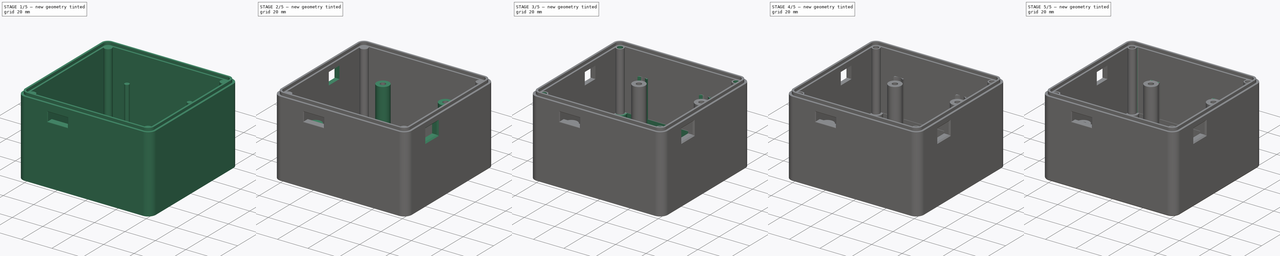
[diagram: build sequence overview — one tinted view per stage of 5, left to right]
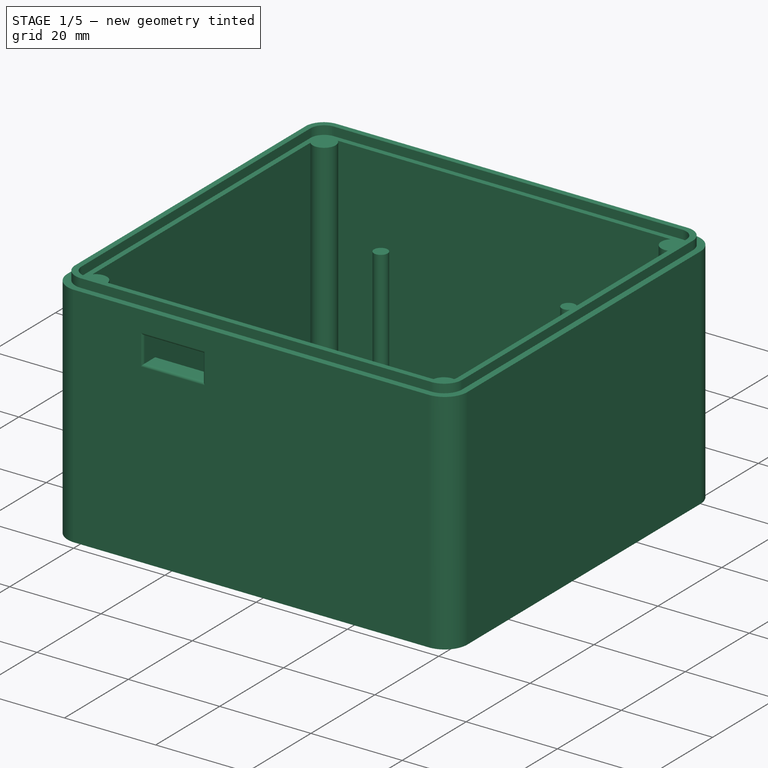
[diagram: stage 1 of 5 — iso view after this stage's code; geometry added in this stage tinted green]
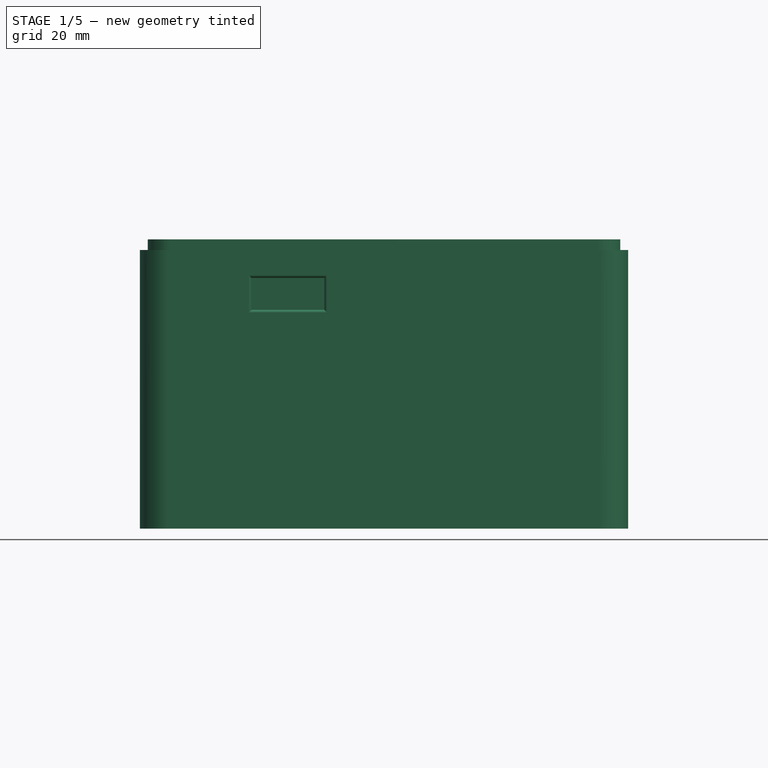
[diagram: stage 1 of 5 — front view after this stage's code; geometry added in this stage tinted green]
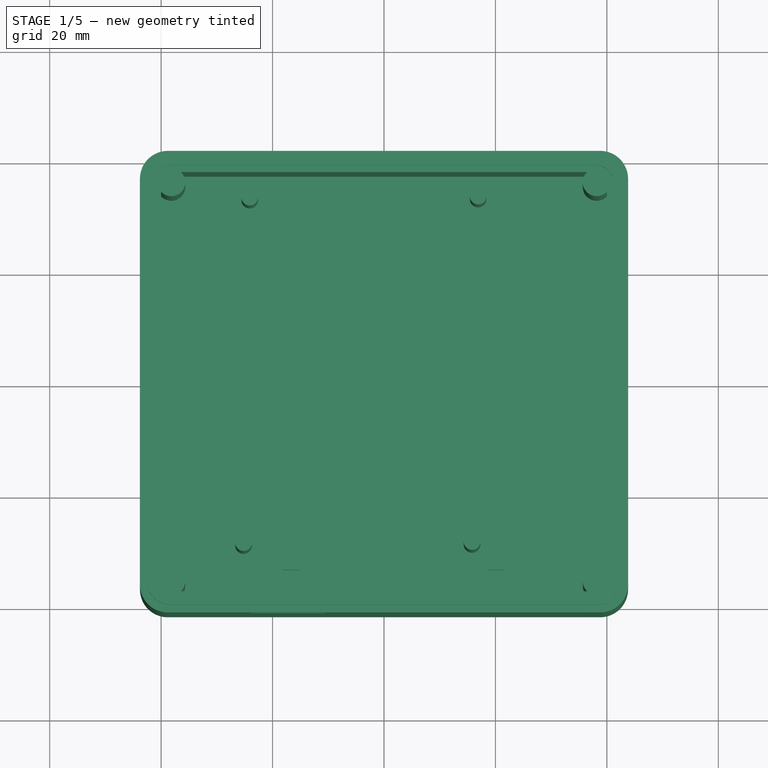
[diagram: stage 1 of 5 — top view after this stage's code; geometry added in this stage tinted green]
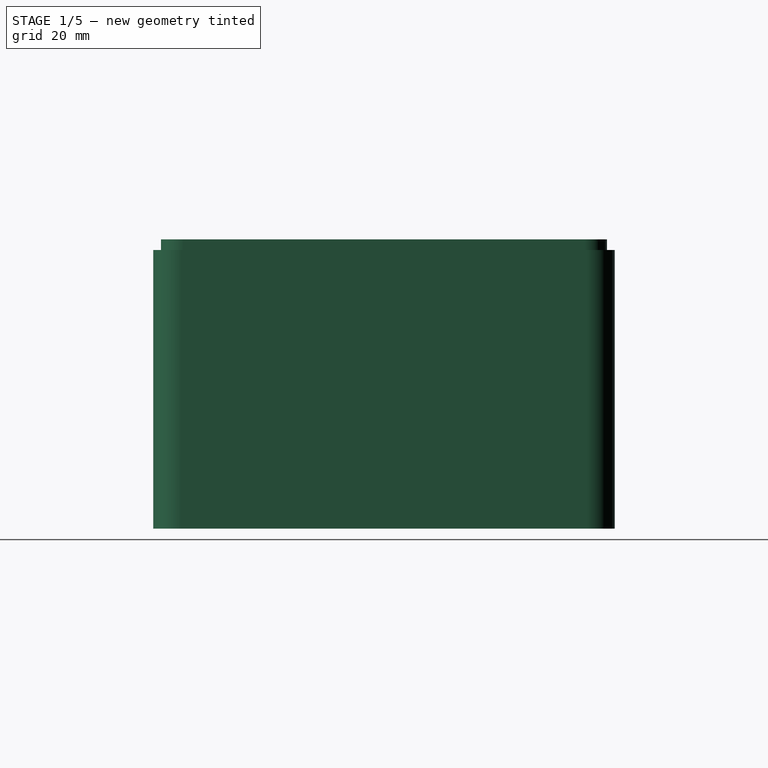
[diagram: stage 1 of 5 — right view after this stage's code; geometry added in this stage tinted green]
FCSTD DOCUMENT  (FreeCAD 0.20R29410 (Git))
Label: CASE DEFINITIVO - BACKUP
License: All rights reserved
LicenseURL: http://en.wikipedia.org/wiki/All_rights_reserved
objects: Sketcher::SketchObject×23, TechDraw::DrawViewDimension×18, PartDesign::Pocket×10, PartDesign::Pad×8, PartDesign::Fillet×6, PartDesign::Hole×6, PartDesign::Chamfer×3, PartDesign::Body×2, TechDraw::DrawSVGTemplate×1, TechDraw::DrawViewPart×1, TechDraw::DrawPage×1
note: 91 computed .brp shape members not serialized (recipe doc carries the construction recipe); baked Part::Feature solids carry a one-line shape summary decoded from their .brp

FEATURE [Sketcher::SketchObject] Sketch001
  FullyConstrained = true
  MapMode = 5
  Support = -> [XY_Plane001]
  sketch-geometry (9):
    g0: LineSegment StartX=-43.8 StartY=-36.42 StartZ=0 EndX=-43.8 EndY=36.42 EndZ=0
    g1: LineSegment StartX=-38.8 StartY=41.42 StartZ=0 EndX=38.8 EndY=41.42 EndZ=0
    g2: LineSegment StartX=43.8 StartY=36.42 StartZ=0 EndX=43.8 EndY=-36.42 EndZ=0
    g3: LineSegment StartX=38.8 StartY=-41.42 StartZ=0 EndX=-38.8 EndY=-41.42 EndZ=0
    g4: GeomPoint X=0 Y=0 Z=0
    g5: ArcOfCircle CenterX=38.8 CenterY=36.42 CenterZ=0 NormalX=0 NormalY=0 NormalZ=1 AngleXU=0 Radius=5 StartAngle=2.2e-14 EndAngle=1.5708
    g6: ArcOfCircle CenterX=38.8 CenterY=-36.42 CenterZ=0 NormalX=0 NormalY=0 NormalZ=1 AngleXU=0 Radius=5 StartAngle=4.71239 EndAngle=6.28319
    g7: ArcOfCircle CenterX=-38.8 CenterY=-36.42 CenterZ=0 NormalX=0 NormalY=0 NormalZ=1 AngleXU=0 Radius=5 StartAngle=3.14159 EndAngle=4.71239
    g8: ArcOfCircle CenterX=-38.8 CenterY=36.42 CenterZ=0 NormalX=0 NormalY=0 NormalZ=1 AngleXU=0 Radius=5 StartAngle=1.5708 EndAngle=3.14159
  constraints (20):
    c: Horizontal(g1)
    c: Horizontal(g3)
    c: Vertical(g0)
    c: Vertical(g2)
    c: Coincident(g4,g-1)
    c: Tangent(g1,g5) = 1.5708
    c: Tangent(g2,g5) = 1.5708
    c: Tangent(g3,g6) = 1.5708
    c: Tangent(g2,g6) = 1.5708
    c: Tangent(g0,g7) = 1.5708
    c: Tangent(g3,g7) = 1.5708
    c: Tangent(g0,g8) = 1.5708
    c: Tangent(g1,g8) = 1.5708
    c: Radius(g5) = 5
    c: Radius(g8) = 5
    c: Radius(g7) = 5
    c: Radius(g6) = 5
    c: DistanceY(g2,g2) = 72.84
    c: DistanceX(g1,g1) = 77.6
    c: Symmetric(g7,g5,g4)
FEATURE [PartDesign::Pad] Pad
  Direction = (0,0,1)
  Length = 50
  Length2 = 10
  Profile = -> Sketch001
  ReferenceAxis = -> Sketch001 [N_Axis]
  Type = 0
FEATURE [Sketcher::SketchObject] Sketch
  ExternalGeometry = -> [Pad]
  FullyConstrained = true
  MapMode = 5
  Placement = pos=(0,0,50) rot=(0,0,1;0rad)
  Support = -> [Pad]
  sketch-geometry (20):
    g0: ArcOfCircle CenterX=-38.4 CenterY=36.02 CenterZ=0 NormalX=0 NormalY=0 NormalZ=1 AngleXU=0 Radius=4 StartAngle=1.5708 EndAngle=3.14159
    g1: LineSegment StartX=-38.4 StartY=40.02 StartZ=0 EndX=38.4 EndY=40.02 EndZ=0
    g2: ArcOfCircle CenterX=38.4 CenterY=36.02 CenterZ=0 NormalX=0 NormalY=0 NormalZ=1 AngleXU=0 Radius=4 StartAngle=3e-16 EndAngle=1.5708
    g3: LineSegment StartX=42.4 StartY=36.02 StartZ=0 EndX=42.4 EndY=-36.02 EndZ=0
    g4: ArcOfCircle CenterX=38.4 CenterY=-36.02 CenterZ=0 NormalX=0 NormalY=0 NormalZ=1 AngleXU=0 Radius=4 StartAngle=4.71239 EndAngle=6.28319
    g5: LineSegment StartX=38.4 StartY=-40.02 StartZ=0 EndX=-38.4 EndY=-40.02 EndZ=0
    g6: ArcOfCircle CenterX=-38.4 CenterY=-36.02 CenterZ=0 NormalX=0 NormalY=0 NormalZ=1 AngleXU=0 Radius=4 StartAngle=3.14159 EndAngle=4.71239
    g7: LineSegment StartX=-42.4 StartY=-36.02 StartZ=0 EndX=-42.4 EndY=36.02 EndZ=0
    g8: GeomPoint X=-42.4 Y=40.02 Z=0
    g9: GeomPoint X=42.4 Y=-40.02 Z=0
    g10: ArcOfCircle CenterX=-38.17 CenterY=35.79 CenterZ=0 NormalX=0 NormalY=0 NormalZ=1 AngleXU=0 Radius=3 StartAngle=1.5708 EndAngle=3.14159
    g11: LineSegment StartX=-38.17 StartY=38.79 StartZ=0 EndX=38.17 EndY=38.79 EndZ=0
    g12: ArcOfCircle CenterX=38.17 CenterY=35.79 CenterZ=0 NormalX=0 NormalY=0 NormalZ=1 AngleXU=0 Radius=3 StartAngle=-9e-16 EndAngle=1.5708
    g13: LineSegment StartX=41.17 StartY=35.79 StartZ=0 EndX=41.17 EndY=-35.79 EndZ=0
    g14: ArcOfCircle CenterX=38.17 CenterY=-35.79 CenterZ=0 NormalX=0 NormalY=0 NormalZ=1 AngleXU=0 Radius=3 StartAngle=4.71239 EndAngle=6.28319
    g15: LineSegment StartX=38.17 StartY=-38.79 StartZ=0 EndX=-38.17 EndY=-38.79 EndZ=0
    g16: ArcOfCircle CenterX=-38.17 CenterY=-35.79 CenterZ=0 NormalX=0 NormalY=0 NormalZ=1 AngleXU=0 Radius=3 StartAngle=3.14159 EndAngle=4.71239
    g17: LineSegment StartX=-41.17 StartY=-35.79 StartZ=0 EndX=-41.17 EndY=35.79 EndZ=0
    g18: GeomPoint X=-41.17 Y=38.79 Z=0
    g19: GeomPoint X=41.17 Y=-38.79 Z=0
  constraints (47):
    c: Tangent(g0,g1) = 1.5708
    c: Tangent(g1,g2) = 1.5708
    c: Tangent(g2,g3) = 1.5708
    c: Tangent(g3,g4) = 1.5708
    c: Tangent(g4,g5) = 1.5708
    c: Tangent(g5,g6) = 1.5708
    c: Tangent(g6,g7) = 1.5708
    c: Tangent(g7,g0) = 1.5708
    c: Horizontal(g1)
    c: Horizontal(g5)
    c: Vertical(g3)
    c: Vertical(g7)
    c: Equal(g0,g2)
    c: Equal(g2,g4)
    c: Equal(g4,g6)
    c: PointOnObject(g8,g1)
    c: PointOnObject(g8,g7)
    c: PointOnObject(g9,g3)
    c: PointOnObject(g9,g5)
    c: Symmetric(g6,g2,g-1)
    c: Radius(g0) = 4
    c: DistanceX(g-4,g0) = 1.4
    c: DistanceY(g-10,g5) = 1.4
    c: Tangent(g10,g11) = 1.5708
    c: Tangent(g11,g12) = 1.5708
    c: Tangent(g12,g13) = 1.5708
    c: Tangent(g13,g14) = 1.5708
    c: Tangent(g14,g15) = 1.5708
    c: Tangent(g15,g16) = 1.5708
    c: Tangent(g16,g17) = 1.5708
    c: Tangent(g17,g10) = 1.5708
    c: Horizontal(g11)
    c: Horizontal(g15)
    c: Vertical(g13)
    c: Vertical(g17)
    c: Equal(g10,g12)
    c: Equal(g12,g14)
    c: Equal(g14,g16)
    c: PointOnObject(g18,g11)
    c: PointOnObject(g18,g17)
    c: PointOnObject(g19,g13)
    c: PointOnObject(g19,g15)
    c: Radius(g10) = 3
    c: DistanceX(g0,g10) = 1.23
    c: DistanceY(g5,g15) = 1.23
    c: DistanceY(g10,g0) = 1.23
    c: DistanceX(g12,g2) = 1.23
FEATURE [PartDesign::Pad] Pad001
  BaseFeature = -> Pad
  Direction = (0,0,1)
  Length = 1.9
  Length2 = 10
  Profile = -> Sketch
  ReferenceAxis = -> Sketch [N_Axis]
  Type = 0
FEATURE [Sketcher::SketchObject] Sketch002
  ExternalGeometry = -> [Pad001]
  FullyConstrained = true
  MapMode = 5
  Placement = pos=(0,0,50) rot=(0,0,1;0rad)
  Support = -> [Pad001]
  sketch-geometry (10):
    g0: LineSegment StartX=-36.4667 StartY=37.62 StartZ=0 EndX=36.4667 EndY=37.62 EndZ=0
    g1: LineSegment StartX=40 StartY=34.0867 StartZ=0 EndX=40 EndY=-34.0867 EndZ=0
    g2: LineSegment StartX=36.4667 StartY=-37.62 StartZ=0 EndX=-36.4667 EndY=-37.62 EndZ=0
    g3: LineSegment StartX=-40 StartY=-34.0867 StartZ=0 EndX=-40 EndY=34.0867 EndZ=0
    g4: GeomPoint X=-40 Y=37.62 Z=0
    g5: GeomPoint X=40 Y=-37.62 Z=0
    g6: ArcOfCircle CenterX=-38.17 CenterY=-35.79 CenterZ=0 NormalX=0 NormalY=0 NormalZ=1 AngleXU=0 Radius=2.5 StartAngle=5.46193 EndAngle=8.67523
    g7: ArcOfCircle CenterX=38.17 CenterY=-35.79 CenterZ=0 NormalX=0 NormalY=0 NormalZ=1 AngleXU=0 Radius=2.5 StartAngle=0.749543 EndAngle=3.96285
    g8: ArcOfCircle CenterX=-38.17 CenterY=35.79 CenterZ=0 NormalX=0 NormalY=0 NormalZ=1 AngleXU=0 Radius=2.5 StartAngle=3.89114 EndAngle=7.10444
    g9: ArcOfCircle CenterX=38.17 CenterY=35.79 CenterZ=0 NormalX=0 NormalY=0 NormalZ=1 AngleXU=0 Radius=2.5 StartAngle=2.32034 EndAngle=5.53364
  constraints (28):
    c: Horizontal(g0)
    c: Horizontal(g2)
    c: Vertical(g1)
    c: Vertical(g3)
    c: PointOnObject(g4,g0)
    c: PointOnObject(g4,g3)
    c: PointOnObject(g5,g1)
    c: PointOnObject(g5,g2)
    c: Coincident(g6,g-10)
    c: Coincident(g6,g3)
    c: Coincident(g6,g2)
    c: Radius(g6) = 2.5
    c: Coincident(g7,g-8)
    c: Coincident(g7,g1)
    c: Coincident(g7,g2)
    c: Equal(g6,g7)
    c: Coincident(g8,g-4)
    c: Coincident(g8,g3)
    c: Coincident(g8,g0)
    c: Equal(g6,g8)
    c: Coincident(g9,g-6)
    c: Coincident(g9,g0)
    c: Coincident(g9,g1)
    c: Equal(g8,g9)
    c: DistanceX(g-10,g3) = 1.17
    c: DistanceY(g-10,g2) = 1.17
    c: DistanceX(g1,g-8) = 1.17
    c: DistanceY(g0,g-6) = 1.17
FEATURE [PartDesign::Pocket] Pocket
  BaseFeature = -> Pad001
  Direction = (0,0,-1)
  Length = 47.8
  Length2 = 5
  Profile = -> Sketch002
  ReferenceAxis = -> Sketch002 [N_Axis]
  Type = 0
FEATURE [Sketcher::SketchObject] Sketch004
  ExternalGeometry = -> [Pocket]
  FullyConstrained = true
  MapMode = 5
  Placement = pos=(0,0,2.2) rot=(0,0,1;0rad)
  sketch-geometry (27):
    g0: Circle CenterX=-24.1 CenterY=33.42 CenterZ=0 NormalX=0 NormalY=0 NormalZ=1 AngleXU=0 Radius=1.5
    g1: GeomPoint X=-24.1 Y=34.92 Z=0
    g2: LineSegment StartX=-24.1 StartY=37.62 StartZ=0 EndX=-24.1 EndY=34.92 EndZ=0
    g3: GeomPoint X=-24.1 Y=31.92 Z=0
    g4: GeomPoint X=-24.1 Y=33.42 Z=0
    g5: Circle CenterX=16.9 CenterY=33.62 CenterZ=0 NormalX=0 NormalY=0 NormalZ=1 AngleXU=0 Radius=1.5
    g6: LineSegment StartX=16.9 StartY=35.12 StartZ=0 EndX=16.9 EndY=37.62 EndZ=0
    g7: LineSegment StartX=16.9 StartY=33.62 StartZ=0 EndX=15.4 EndY=33.62 EndZ=0
    g8: LineSegment StartX=-22.6 StartY=33.42 StartZ=0 EndX=-40 EndY=33.42 EndZ=0
    g9: LineSegment StartX=-24.1 StartY=33.42 StartZ=0 EndX=-22.6 EndY=33.42 EndZ=0
    g10: LineSegment StartX=-24.1 StartY=33.42 StartZ=0 EndX=-22.6 EndY=33.42 EndZ=0
    g11: LineSegment StartX=-24.1 StartY=33.42 StartZ=0 EndX=-24.1 EndY=34.92 EndZ=0
    g12: LineSegment StartX=16.9 StartY=33.62 StartZ=0 EndX=16.9 EndY=35.12 EndZ=0
    g13: LineSegment StartX=16.9 StartY=33.62 StartZ=0 EndX=16.9 EndY=32.12 EndZ=0
    g14: LineSegment StartX=-24.1 StartY=33.42 StartZ=0 EndX=-24.1 EndY=34.92 EndZ=0
    g15: Circle CenterX=-25.2 CenterY=-28.58 CenterZ=0 NormalX=0 NormalY=0 NormalZ=1 AngleXU=0 Radius=1.5
    g16: Circle CenterX=15.8 CenterY=-28.38 CenterZ=0 NormalX=0 NormalY=0 NormalZ=1 AngleXU=0 Radius=1.5
    g17: LineSegment StartX=-25.2 StartY=-28.58 StartZ=0 EndX=-25.2 EndY=-27.08 EndZ=0
    g18: LineSegment StartX=-25.2 StartY=-28.58 StartZ=0 EndX=-23.7 EndY=-28.58 EndZ=0
    g19: LineSegment StartX=-25.2 StartY=-28.58 StartZ=0 EndX=-25.2 EndY=-30.08 EndZ=0
    g20: LineSegment StartX=-25.2 StartY=-28.58 StartZ=0 EndX=-26.7 EndY=-28.58 EndZ=0
    g21: LineSegment StartX=15.8 StartY=-28.38 StartZ=0 EndX=15.8 EndY=-26.88 EndZ=0
    g22: LineSegment StartX=15.8 StartY=-28.38 StartZ=0 EndX=17.3 EndY=-28.38 EndZ=0
    g23: LineSegment StartX=15.8 StartY=-28.38 StartZ=0 EndX=15.8 EndY=-29.88 EndZ=0
    g24: LineSegment StartX=15.8 StartY=-28.38 StartZ=0 EndX=14.3 EndY=-28.38 EndZ=0
    g25: LineSegment StartX=-26.7 StartY=-28.58 StartZ=0 EndX=-40 EndY=-28.58 EndZ=0
    g26: GeomPoint X=-25.6 Y=33.42 Z=0
  constraints (75):
    c: PointOnObject(g1,g0)
    c: PointOnObject(g3,g0)
    c: Coincident(g4,g0)
    c: PointOnObject(g9,g0)
    c: PointOnObject(g8,g-4)
    c: PointOnObject(g2,g-3)
    c: PointOnObject(g7,g5)
    c: PointOnObject(g6,g5)
    c: PointOnObject(g6,g-3)
    c: DistanceY(g2,g2) = 2.7
    c: Coincident(g1,g2)
    c: Coincident(g9,g0)
    c: Horizontal(g9)
    c: Coincident(g10,g0)
    c: PointOnObject(g10,g0)
    c: Horizontal(g10)
    c: Coincident(g8,g10)
    c: Horizontal(g8)
    c: Coincident(g11,g0)
    c: Vertical(g11)
    c: Coincident(g1,g11)
    c: Vertical(g2)
    c: Horizontal(g7)
    c: Coincident(g7,g5)
    c: Coincident(g12,g5)
    c: Vertical(g12)
    c: Coincident(g13,g5)
    c: PointOnObject(g13,g5)
    c: Vertical(g13)
    c: Coincident(g6,g12)
    c: Vertical(g6)
    c: Coincident(g14,g0)
    c: PointOnObject(g14,g0)
    c: Vertical(g14)
    c: Diameter(g0) = 3
    c: DistanceX(g9,g7) = 38
    c: DistanceY(g6,g6) = 2.5
    c: Diameter(g5) = 3
    c: Coincident(g17,g15)
    c: PointOnObject(g17,g15)
    c: Vertical(g17)
    c: Coincident(g18,g15)
    c: PointOnObject(g18,g15)
    c: Horizontal(g18)
    c: Coincident(g19,g15)
    c: PointOnObject(g19,g15)
    c: Vertical(g19)
    c: Coincident(g20,g15)
    c: PointOnObject(g20,g15)
    c: Horizontal(g20)
    c: Coincident(g21,g16)
    c: PointOnObject(g21,g16)
    c: Vertical(g21)
    c: Coincident(g22,g16)
    c: PointOnObject(g22,g16)
    c: Horizontal(g22)
    c: Coincident(g23,g16)
    c: PointOnObject(g23,g16)
    c: Vertical(g23)
    c: Coincident(g24,g16)
    c: PointOnObject(g24,g16)
    c: Horizontal(g24)
    c: DistanceY(g21,g13) = 59
    c: Coincident(g25,g20)
    c: PointOnObject(g25,g-4)
    c: Horizontal(g25)
    c: DistanceX(g25,g25) = 13.3
    c: Vertical(g3,g0)
    c: PointOnObject(g26,g0)
    c: Horizontal(g26,g0)
    c: DistanceX(g8,g26) = 14.4
    c: DistanceX(g18,g24) = 38
    c: Diameter(g15) = 3
    c: Diameter(g16) = 3
    c: DistanceY(g17,g3) = 59
FEATURE [PartDesign::Pad] Pad002
  BaseFeature = -> Pocket
  Direction = (0,0,1)
  Length = 30.8
  Length2 = 10
  Profile = -> Sketch004
  ReferenceAxis = -> Sketch004 [N_Axis]
  Type = 0
FEATURE [Sketcher::SketchObject] Sketch007
  FullyConstrained = false
  MapMode = 2
  Placement = pos=(0,0,2.2) rot=(0,0,1;0rad)
  sketch-geometry (13):
    g0: LineSegment StartX=-28.2863 StartY=31.997 StartZ=0 EndX=-18.2863 EndY=31.997 EndZ=0
    g1: LineSegment StartX=-18.2863 StartY=31.997 StartZ=0 EndX=-15.2863 EndY=31.997 EndZ=0
    g2: LineSegment StartX=-15.2863 StartY=31.997 StartZ=0 EndX=-15.2863 EndY=-33.003 EndZ=0
    g3: LineSegment StartX=-15.2863 StartY=-33.003 StartZ=0 EndX=-18.2863 EndY=-33.003 EndZ=0
    g4: LineSegment StartX=-18.2863 StartY=-33.003 StartZ=0 EndX=-18.2863 EndY=31.997 EndZ=0
    g5: LineSegment StartX=-18.2863 StartY=-33.003 StartZ=0 EndX=-28.4262 EndY=-33.003 EndZ=0
    g6: LineSegment StartX=18.7137 StartY=-33.003 StartZ=0 EndX=21.7137 EndY=-33.003 EndZ=0
    g7: LineSegment StartX=21.7137 StartY=-33.003 StartZ=0 EndX=21.7137 EndY=31.997 EndZ=0
    g8: LineSegment StartX=21.7137 StartY=31.997 StartZ=0 EndX=18.7137 EndY=31.997 EndZ=0
    g9: LineSegment StartX=18.7137 StartY=31.997 StartZ=0 EndX=18.7137 EndY=-33.003 EndZ=0
    g10: LineSegment StartX=-15.2863 StartY=-33.003 StartZ=0 EndX=18.7137 EndY=-33.003 EndZ=0
    g11: LineSegment StartX=-15.2863 StartY=31.997 StartZ=0 EndX=18.7137 EndY=31.997 EndZ=0
    g12: LineSegment StartX=-18.2863 StartY=31.997 StartZ=0 EndX=-18.2863 EndY=37.797 EndZ=0
  constraints (34):
    c: Horizontal(g0)
    c: Distance(g0) = 10
    c: Coincident(g1,g2)
    c: Coincident(g2,g3)
    c: Coincident(g3,g4)
    c: Coincident(g4,g1)
    c: Horizontal(g1)
    c: Horizontal(g3)
    c: Vertical(g2)
    c: Vertical(g4)
    c: Coincident(g1,g0)
    c: DistanceX(g3,g3) = 3
    c: Coincident(g5,g3)
    c: Horizontal(g5)
    c: DistanceY(g2,g2) = 65
    c: Coincident(g6,g7)
    c: Coincident(g7,g8)
    c: Coincident(g8,g9)
    c: Coincident(g9,g6)
    c: Horizontal(g6)
    c: Horizontal(g8)
    c: Vertical(g7)
    c: Vertical(g9)
    c: DistanceX(g6,g6) = 3
    c: DistanceX(g1,g6) = 34
    c: Coincident(g10,g2)
    c: Coincident(g10,g6)
    c: Horizontal(g10)
    c: Coincident(g11,g1)
    c: Coincident(g11,g8)
    c: Horizontal(g11)
    c: Coincident(g12,g1)
    c: Vertical(g12)
    c: DistanceY(g12,g12) = 5.8
FEATURE [PartDesign::Pad] Pad003
  BaseFeature = -> Pad002
  Direction = (0,0,1)
  Length = 5
  Length2 = 10
  Profile = -> Sketch007
  ReferenceAxis = -> Sketch007 [N_Axis]
  Type = 0
FEATURE [Sketcher::SketchObject] Sketch008
  ExternalGeometry = -> [Pad003]
  FullyConstrained = true
  MapMode = 5
  Placement = pos=(0,-41.42,0) rot=(1,0,0;1.5708rad)
  Support = -> [Pad003]
  sketch-geometry (6):
    g0: LineSegment StartX=-38.8 StartY=45 StartZ=0 EndX=-23.8 EndY=45 EndZ=0
    g1: LineSegment StartX=-10.7 StartY=50 StartZ=0 EndX=-10.7 EndY=45 EndZ=0
    g2: LineSegment StartX=-23.8 StartY=45 StartZ=0 EndX=-10.7 EndY=45 EndZ=0
    g3: LineSegment StartX=-10.7 StartY=45 StartZ=0 EndX=-10.7 EndY=39.25 EndZ=0
    g4: LineSegment StartX=-10.7 StartY=39.25 StartZ=0 EndX=-23.8 EndY=39.25 EndZ=0
    g5: LineSegment StartX=-23.8 StartY=39.25 StartZ=0 EndX=-23.8 EndY=45 EndZ=0
  constraints (18):
    c: PointOnObject(g0,g-3)
    c: Horizontal(g0)
    c: PointOnObject(g1,g-4)
    c: Vertical(g1)
    c: Coincident(g2,g3)
    c: Coincident(g3,g4)
    c: Coincident(g4,g5)
    c: Coincident(g5,g2)
    c: Horizontal(g2)
    c: Horizontal(g4)
    c: Vertical(g3)
    c: Vertical(g5)
    c: DistanceX(g4,g4) = 13.1
    c: DistanceY(g3,g3) = 5.75
    c: Coincident(g0,g2)
    c: Coincident(g1,g2)
    c: DistanceX(g0,g0) = 15
    c: DistanceY(g1,g1) = 5
FEATURE [PartDesign::Pocket] Pocket001
  BaseFeature = -> Pad003
  Direction = (0,1,-2e-16)
  Length = 5
  Length2 = 5
  Profile = -> Sketch008
  ReferenceAxis = -> Sketch008 [N_Axis]
  Type = 0
FEATURE [PartDesign::Fillet] Fillet
  Base = -> Pocket001 [Edge8,Edge5,Edge6,Edge7]
  BaseFeature = -> Pocket001
  Radius = 0.5
  SupportTransform = false
  UseAllEdges = false
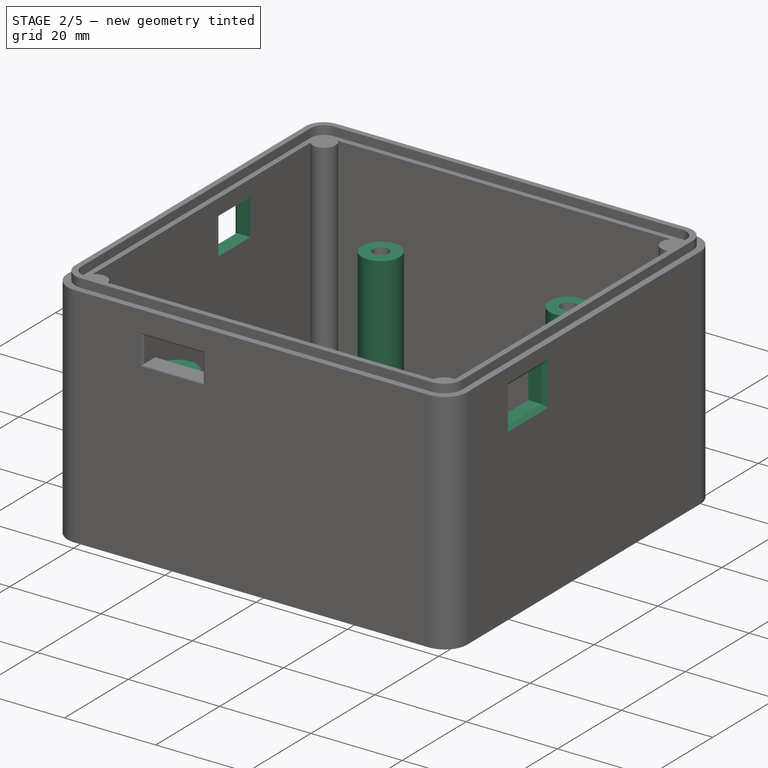
[diagram: stage 2 of 5 — iso view after this stage's code; geometry added in this stage tinted green]
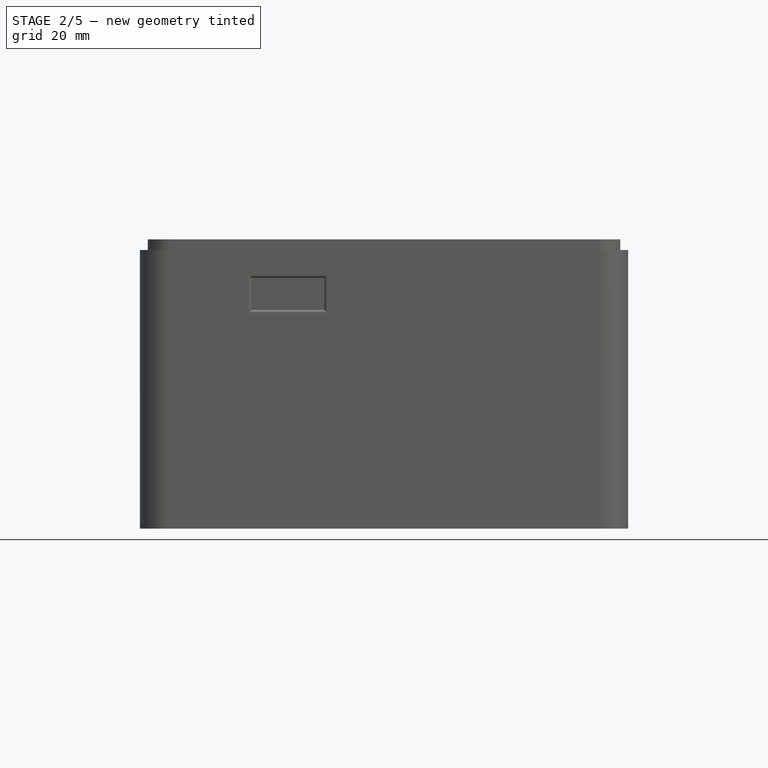
[diagram: stage 2 of 5 — front view after this stage's code; geometry added in this stage tinted green]
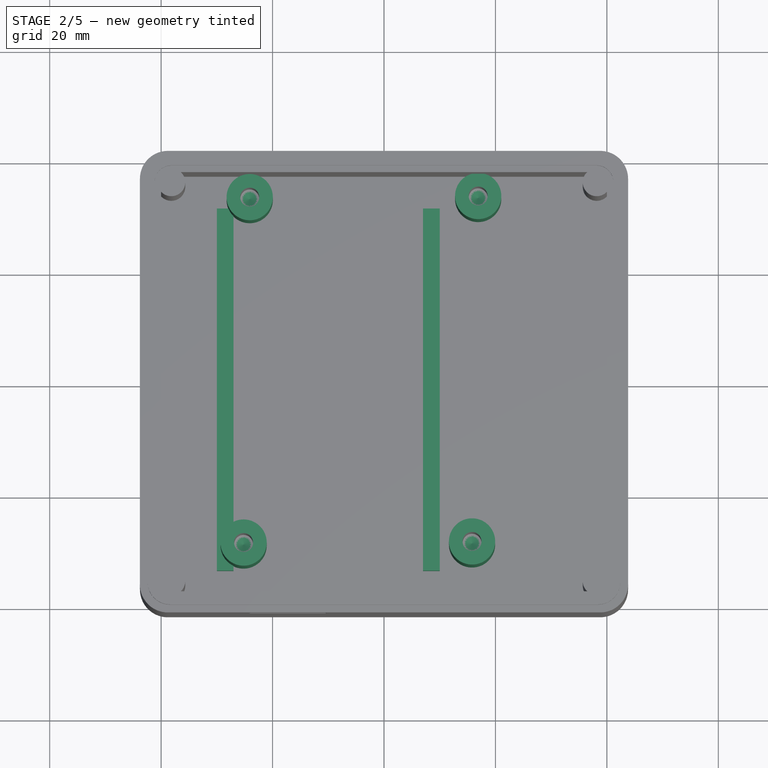
[diagram: stage 2 of 5 — top view after this stage's code; geometry added in this stage tinted green]
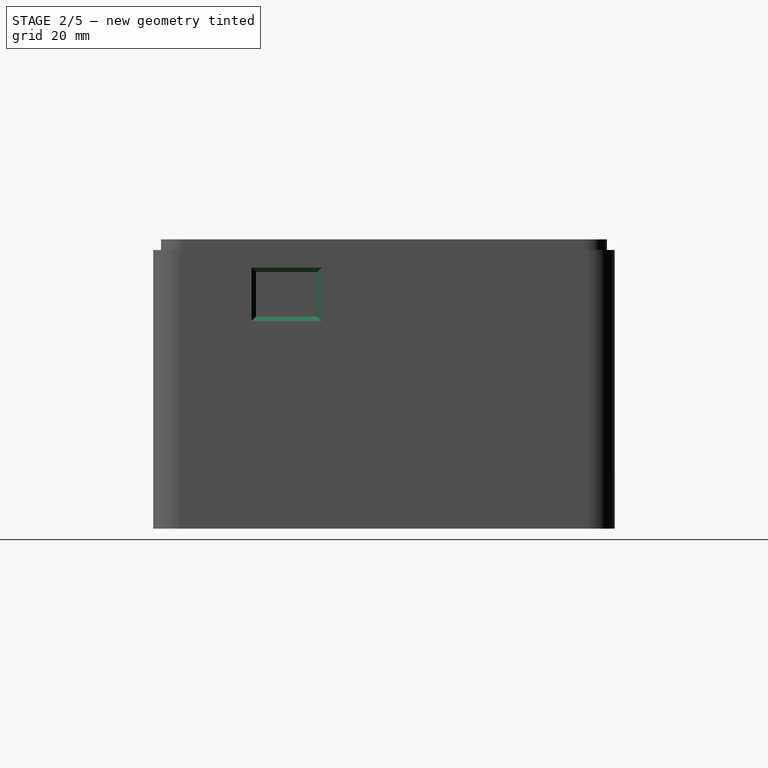
[diagram: stage 2 of 5 — right view after this stage's code; geometry added in this stage tinted green]
FEATURE [Sketcher::SketchObject] Sketch009
  ExternalGeometry = -> [Fillet]
  FullyConstrained = true
  MapMode = 5
  Placement = pos=(-43.8,0,0) rot=(0.57735,-0.57735,-0.57735;2.0944rad)
  Support = -> [Fillet]
  sketch-geometry (6):
    g0: LineSegment StartX=-36.42 StartY=38.49 StartZ=0 EndX=-15.32 EndY=38.49 EndZ=0
    g1: LineSegment StartX=-15.32 StartY=46.49 StartZ=0 EndX=-5.32 EndY=46.49 EndZ=0
    g2: LineSegment StartX=-5.32 StartY=46.49 StartZ=0 EndX=-5.32 EndY=38.49 EndZ=0
    g3: LineSegment StartX=-5.32 StartY=38.49 StartZ=0 EndX=-15.32 EndY=38.49 EndZ=0
    g4: LineSegment StartX=-15.32 StartY=38.49 StartZ=0 EndX=-15.32 EndY=46.49 EndZ=0
    g5: LineSegment StartX=-15.32 StartY=38.49 StartZ=0 EndX=-15.32 EndY=0 EndZ=0
  constraints (18):
    c: PointOnObject(g0,g-3)
    c: Coincident(g1,g2)
    c: Coincident(g2,g3)
    c: Coincident(g3,g4)
    c: Coincident(g4,g1)
    c: Horizontal(g1)
    c: Horizontal(g3)
    c: Vertical(g2)
    c: Vertical(g4)
    c: Coincident(g0,g3)
    c: Horizontal(g0)
    c: DistanceX(g1,g1) = 10
    c: DistanceY(g2,g2) = 8
    c: Coincident(g5,g3)
    c: PointOnObject(g5,g-1)
    c: Vertical(g5)
    c: DistanceY(g5,g5) = 38.49
    c: DistanceX(g-4,g1) = 31.1
FEATURE [PartDesign::Pocket] Pocket002
  BaseFeature = -> Fillet
  Direction = (1,0,0)
  Length = 5
  Length2 = 5
  Profile = -> Sketch009
  ReferenceAxis = -> Sketch009 [N_Axis]
  Type = 0
FEATURE [PartDesign::Chamfer] Chamfer
  Angle = 45
  Base = -> Pocket002 [Edge52,Edge51,Edge54,Edge53]
  BaseFeature = -> Pocket002
  ChamferType = 0
  FlipDirection = false
  Size = 0.8
  Size2 = 1
  SupportTransform = false
  UseAllEdges = false
FEATURE [Sketcher::SketchObject] Sketch010
  ExternalGeometry = -> [Chamfer]
  FullyConstrained = true
  MapMode = 5
  Placement = pos=(43.8,0,0) rot=(0.57735,0.57735,0.57735;2.0944rad)
  Support = -> [Chamfer]
  sketch-geometry (6):
    g0: LineSegment StartX=-22.98 StartY=0 StartZ=0 EndX=-22.98 EndY=38.04 EndZ=0
    g1: LineSegment StartX=-22.98 StartY=38.04 StartZ=0 EndX=-11.98 EndY=38.04 EndZ=0
    g2: LineSegment StartX=-11.98 StartY=38.04 StartZ=0 EndX=-11.98 EndY=46.04 EndZ=0
    g3: LineSegment StartX=-11.98 StartY=46.04 StartZ=0 EndX=-22.98 EndY=46.04 EndZ=0
    g4: LineSegment StartX=-22.98 StartY=46.04 StartZ=0 EndX=-22.98 EndY=38.04 EndZ=0
    g5: LineSegment StartX=-36.42 StartY=46.04 StartZ=0 EndX=-22.98 EndY=46.04 EndZ=0
  constraints (18):
    c: PointOnObject(g0,g-1)
    c: Vertical(g0)
    c: DistanceY(g0,g0) = 38.04
    c: Coincident(g1,g2)
    c: Coincident(g2,g3)
    c: Coincident(g3,g4)
    c: Coincident(g4,g1)
    c: Horizontal(g1)
    c: Horizontal(g3)
    c: Vertical(g2)
    c: Vertical(g4)
    c: Coincident(g1,g0)
    c: PointOnObject(g5,g-3)
    c: Horizontal(g5)
    c: Coincident(g5,g3)
    c: DistanceX(g5,g5) = 13.44
    c: DistanceY(g2,g2) = 8
    c: DistanceX(g3,g3) = 11
FEATURE [PartDesign::Pocket] Pocket003
  BaseFeature = -> Chamfer
  Direction = (-1,0,0)
  Length = 5
  Length2 = 5
  Profile = -> Sketch010
  ReferenceAxis = -> Sketch010 [N_Axis]
  Type = 0
FEATURE [PartDesign::Chamfer] Chamfer001
  Angle = 45
  Base = -> Pocket003 [Edge59,Edge60,Edge57,Edge58]
  BaseFeature = -> Pocket003
  ChamferType = 0
  FlipDirection = false
  Size = 0.8
  Size2 = 1
  SupportTransform = false
  UseAllEdges = false
FEATURE [Sketcher::SketchObject] Sketch018
  ExternalGeometry = -> [Chamfer001]
  FullyConstrained = true
  MapMode = 5
  Placement = pos=(0,0,2.2) rot=(0,0,1;0rad)
  Support = -> [Chamfer001]
  sketch-geometry (4):
    g0: Circle CenterX=-24.1 CenterY=33.42 CenterZ=0 NormalX=0 NormalY=0 NormalZ=1 AngleXU=0 Radius=4.15
    g1: Circle CenterX=16.9 CenterY=33.62 CenterZ=0 NormalX=0 NormalY=0 NormalZ=1 AngleXU=0 Radius=4.15
    g2: Circle CenterX=15.8 CenterY=-28.38 CenterZ=0 NormalX=0 NormalY=0 NormalZ=1 AngleXU=0 Radius=4.15
    g3: Circle CenterX=-25.2 CenterY=-28.58 CenterZ=0 NormalX=0 NormalY=0 NormalZ=1 AngleXU=0 Radius=4.15
  constraints (8):
    c: Coincident(g0,g-3)
    c: Diameter(g0) = 8.3
    c: Coincident(g1,g-4)
    c: Coincident(g2,g-7)
    c: Coincident(g3,g-5)
    c: Equal(g0,g1)
    c: Equal(g1,g2)
    c: Equal(g2,g3)
FEATURE [PartDesign::Pad] Pad005
  BaseFeature = -> Chamfer001
  Direction = (0,0,1)
  Length = 33
  Length2 = 10
  Profile = -> Sketch018
  ReferenceAxis = -> Sketch018 [N_Axis]
  Type = 0
FEATURE [PartDesign::Body] Body  label="TAMPA"
  Group = -> [Sketch011,Pad004,Sketch012,Pocket004,Sketch013,Pocket005,Sketch014,Hole,Sketch015,Pocket006,Fillet002,Sketch016,Pocket007,Fillet003,Sketch017,Pocket008,Chamfer002,Sketch022,Sketch027,Pad012,Sketch028,Sketch029,Hole004,Hole005,Pocket010]
  Origin = -> Origin
  Placement = pos=(-2e-15,1e-15,61) rot=(1,0,0;3.14159rad)
  Tip = -> Pocket010
FEATURE [PartDesign::Hole] Hole001
  BaseFeature = -> Pad005
  CustomThreadClearance = 0
  Depth = 19
  DepthType = 0
  Diameter = 3.4
  DrillForDepth = false
  DrillPoint = 1
  DrillPointAngle = 120
  HoleCutCountersinkAngle = 90
  HoleCutCustomValues = false
  HoleCutDepth = 5.4
  HoleCutDiameter = 6.7584
  HoleCutType = 0
  ModelThread = false
  Profile = -> Pad005 [Edge211,Edge208,Edge209,Edge210]
  Tapered = false
  TaperedAngle = 90
  ThreadClass = 0
  ThreadDepth = 19
  ThreadDepthType = 0
  ThreadDirection = 0
  ThreadFit = 0
  ThreadSize = 9
  ThreadType = 1
  Threaded = false
  UseCustomThreadClearance = false
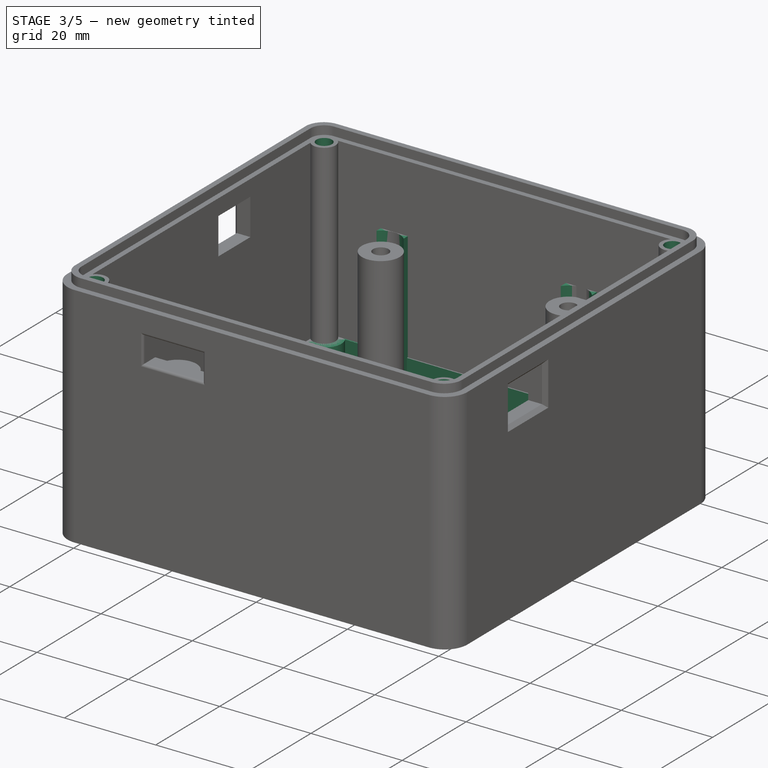
[diagram: stage 3 of 5 — iso view after this stage's code; geometry added in this stage tinted green]
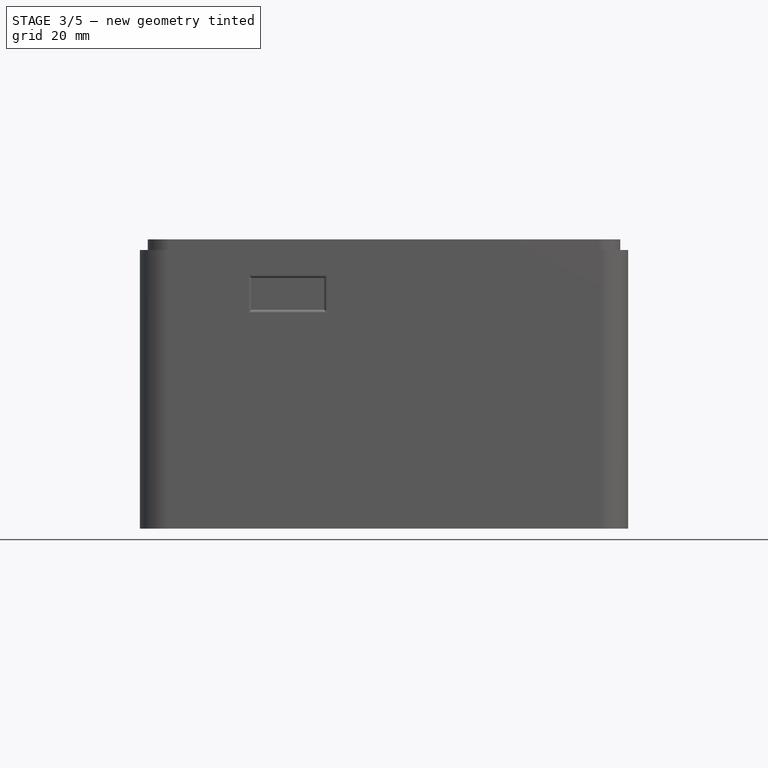
[diagram: stage 3 of 5 — front view after this stage's code; geometry added in this stage tinted green]
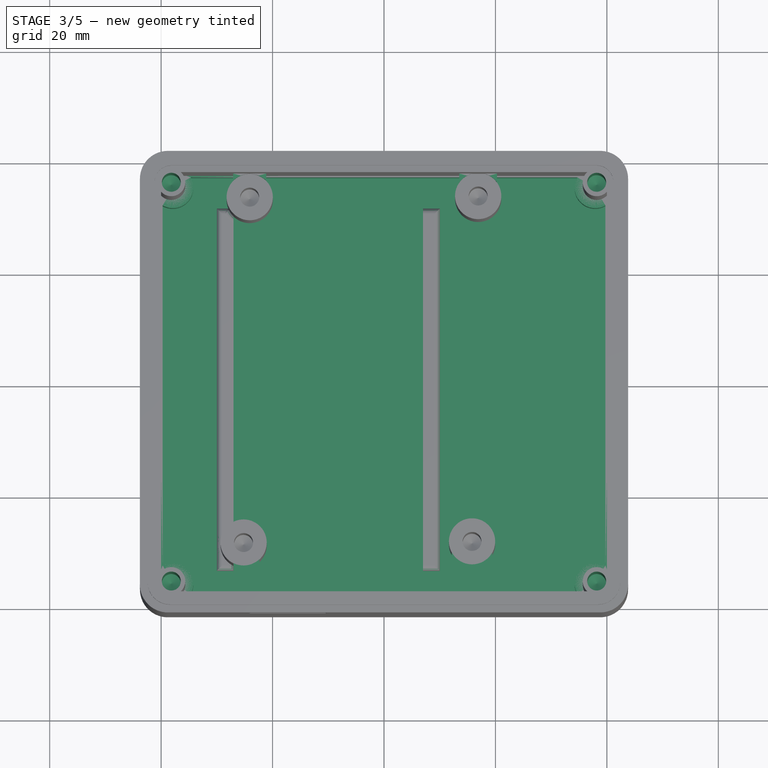
[diagram: stage 3 of 5 — top view after this stage's code; geometry added in this stage tinted green]
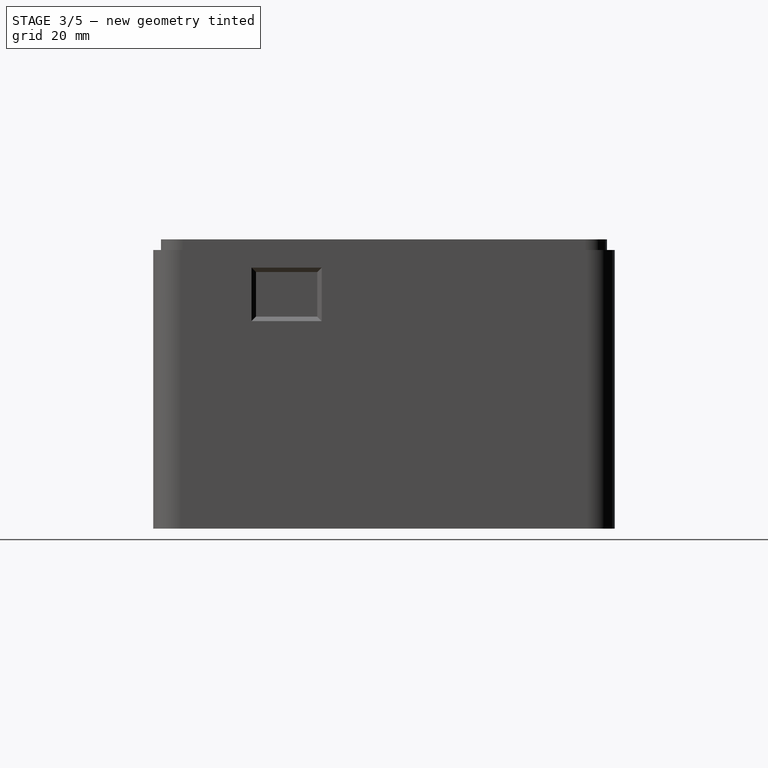
[diagram: stage 3 of 5 — right view after this stage's code; geometry added in this stage tinted green]
FEATURE [Sketcher::SketchObject] Sketch011
  FullyConstrained = true
  MapMode = 5
  Support = -> [XY_Plane]
  sketch-geometry (10):
    g0: ArcOfCircle CenterX=-38.8 CenterY=36.42 CenterZ=0 NormalX=0 NormalY=0 NormalZ=1 AngleXU=0 Radius=5 StartAngle=1.5708 EndAngle=3.14159
    g1: LineSegment StartX=-38.8 StartY=41.42 StartZ=0 EndX=38.8 EndY=41.42 EndZ=0
    g2: ArcOfCircle CenterX=38.8 CenterY=36.42 CenterZ=0 NormalX=0 NormalY=0 NormalZ=1 AngleXU=0 Radius=5 StartAngle=2e-16 EndAngle=1.5708
    g3: LineSegment StartX=43.8 StartY=36.42 StartZ=0 EndX=43.8 EndY=-36.42 EndZ=0
    g4: ArcOfCircle CenterX=38.8 CenterY=-36.42 CenterZ=0 NormalX=0 NormalY=0 NormalZ=1 AngleXU=0 Radius=5 StartAngle=4.71239 EndAngle=6.28319
    g5: LineSegment StartX=38.8 StartY=-41.42 StartZ=0 EndX=-38.8 EndY=-41.42 EndZ=0
    g6: ArcOfCircle CenterX=-38.8 CenterY=-36.42 CenterZ=0 NormalX=0 NormalY=0 NormalZ=1 AngleXU=0 Radius=5 StartAngle=3.14159 EndAngle=4.71239
    g7: LineSegment StartX=-43.8 StartY=-36.42 StartZ=0 EndX=-43.8 EndY=36.42 EndZ=0
    g8: GeomPoint X=-43.8 Y=41.42 Z=0
    g9: GeomPoint X=43.8 Y=-41.42 Z=0
  constraints (23):
    c: Tangent(g0,g1) = 1.5708
    c: Tangent(g1,g2) = 1.5708
    c: Tangent(g2,g3) = 1.5708
    c: Tangent(g3,g4) = 1.5708
    c: Tangent(g4,g5) = 1.5708
    c: Tangent(g5,g6) = 1.5708
    c: Tangent(g6,g7) = 1.5708
    c: Tangent(g7,g0) = 1.5708
    c: Horizontal(g1)
    c: Horizontal(g5)
    c: Vertical(g3)
    c: Vertical(g7)
    c: Equal(g0,g2)
    c: Equal(g2,g4)
    c: Equal(g4,g6)
    c: PointOnObject(g8,g1)
    c: PointOnObject(g8,g7)
    c: PointOnObject(g9,g3)
    c: PointOnObject(g9,g5)
    c: Radius(g2) = 5
    c: Symmetric(g2,g6,g-1)
    c: DistanceX(g1,g1) = 77.6
    c: DistanceY(g3,g3) = 72.84
FEATURE [PartDesign::Pad] Pad004
  Direction = (0,0,1)
  Length = 11.2
  Length2 = 10
  Profile = -> Sketch011
  ReferenceAxis = -> Sketch011 [N_Axis]
  Type = 0
FEATURE [Sketcher::SketchObject] Sketch012
  ExternalGeometry = -> [Pad004]
  FullyConstrained = true
  MapMode = 5
  Placement = pos=(0,0,11.2) rot=(0,0,1;0rad)
  Support = -> [Pad004]
  sketch-geometry (20):
    g0: ArcOfCircle CenterX=-38.3 CenterY=35.92 CenterZ=0 NormalX=0 NormalY=0 NormalZ=1 AngleXU=0 Radius=4 StartAngle=1.5708 EndAngle=3.14159
    g1: LineSegment StartX=-38.3 StartY=39.92 StartZ=0 EndX=38.3 EndY=39.92 EndZ=0
    g2: ArcOfCircle CenterX=38.3 CenterY=35.92 CenterZ=0 NormalX=0 NormalY=0 NormalZ=1 AngleXU=0 Radius=4 StartAngle=0 EndAngle=1.5708
    g3: LineSegment StartX=42.3 StartY=35.92 StartZ=0 EndX=42.3 EndY=-35.92 EndZ=0
    g4: ArcOfCircle CenterX=38.3 CenterY=-35.92 CenterZ=0 NormalX=0 NormalY=0 NormalZ=1 AngleXU=0 Radius=4 StartAngle=4.71239 EndAngle=6.28319
    g5: LineSegment StartX=38.3 StartY=-39.92 StartZ=0 EndX=-38.3 EndY=-39.92 EndZ=0
    g6: ArcOfCircle CenterX=-38.3 CenterY=-35.92 CenterZ=0 NormalX=0 NormalY=0 NormalZ=1 AngleXU=0 Radius=4 StartAngle=3.14159 EndAngle=4.71239
    g7: LineSegment StartX=-42.3 StartY=-35.92 StartZ=0 EndX=-42.3 EndY=35.92 EndZ=0
    g8: GeomPoint X=-42.3 Y=39.92 Z=0
    g9: GeomPoint X=42.3 Y=-39.92 Z=0
    g10: ArcOfCircle CenterX=-37.9 CenterY=35.52 CenterZ=0 NormalX=0 NormalY=0 NormalZ=1 AngleXU=0 Radius=3 StartAngle=1.5708 EndAngle=3.14159
    g11: LineSegment StartX=-37.9 StartY=38.52 StartZ=0 EndX=37.9 EndY=38.52 EndZ=0
    g12: ArcOfCircle CenterX=37.9 CenterY=35.52 CenterZ=0 NormalX=0 NormalY=0 NormalZ=1 AngleXU=0 Radius=3 StartAngle=1.1e-15 EndAngle=1.5708
    g13: LineSegment StartX=40.9 StartY=35.52 StartZ=0 EndX=40.9 EndY=-35.52 EndZ=0
    g14: ArcOfCircle CenterX=37.9 CenterY=-35.52 CenterZ=0 NormalX=0 NormalY=0 NormalZ=1 AngleXU=0 Radius=3 StartAngle=4.71239 EndAngle=6.28319
    g15: LineSegment StartX=37.9 StartY=-38.52 StartZ=0 EndX=-37.9 EndY=-38.52 EndZ=0
    g16: ArcOfCircle CenterX=-37.9 CenterY=-35.52 CenterZ=0 NormalX=0 NormalY=0 NormalZ=1 AngleXU=0 Radius=3 StartAngle=3.14159 EndAngle=4.71239
    g17: LineSegment StartX=-40.9 StartY=-35.52 StartZ=0 EndX=-40.9 EndY=35.52 EndZ=0
    g18: GeomPoint X=-40.9 Y=38.52 Z=0
    g19: GeomPoint X=40.9 Y=-38.52 Z=0
  constraints (46):
    c: Tangent(g0,g1) = 1.5708
    c: Tangent(g1,g2) = 1.5708
    c: Tangent(g2,g3) = 1.5708
    c: Tangent(g3,g4) = 1.5708
    c: Tangent(g4,g5) = 1.5708
    c: Tangent(g5,g6) = 1.5708
    c: Tangent(g6,g7) = 1.5708
    c: Tangent(g7,g0) = 1.5708
    c: Horizontal(g1)
    c: Horizontal(g5)
    c: Vertical(g3)
    c: Vertical(g7)
    c: Equal(g0,g2)
    c: Equal(g2,g4)
    c: Equal(g4,g6)
    c: PointOnObject(g8,g1)
    c: PointOnObject(g8,g7)
    c: PointOnObject(g9,g3)
    c: PointOnObject(g9,g5)
    c: Tangent(g10,g11) = 1.5708
    c: Tangent(g11,g12) = 1.5708
    c: Tangent(g12,g13) = 1.5708
    c: Tangent(g13,g14) = 1.5708
    c: Tangent(g14,g15) = 1.5708
    c: Tangent(g15,g16) = 1.5708
    c: Tangent(g16,g17) = 1.5708
    c: Tangent(g17,g10) = 1.5708
    c: Horizontal(g11)
    c: Horizontal(g15)
    c: Vertical(g13)
    c: Vertical(g17)
    c: Equal(g10,g12)
    c: Equal(g12,g14)
    c: Equal(g14,g16)
    c: PointOnObject(g18,g11)
    c: PointOnObject(g18,g17)
    c: PointOnObject(g19,g13)
    c: PointOnObject(g19,g15)
    c: Symmetric(g6,g2,g-1)
    c: Symmetric(g12,g16,g-1)
    c: Radius(g0) = 4
    c: Radius(g10) = 3
    c: DistanceX(g-4,g0) = 1.5
    c: DistanceY(g0,g-5) = 1.5
    c: DistanceX(g0,g10) = 1.4
    c: DistanceY(g10,g0) = 1.4
FEATURE [PartDesign::Pocket] Pocket004
  BaseFeature = -> Pad004
  Direction = (0,0,-1)
  Length = 4.5
  Length2 = 5
  Profile = -> Sketch012
  ReferenceAxis = -> Sketch012 [N_Axis]
  Type = 0
FEATURE [Sketcher::SketchObject] Sketch013
  ExternalGeometry = -> [Pocket004]
  FullyConstrained = true
  MapMode = 5
  Placement = pos=(0,0,11.2) rot=(0,0,1;0rad)
  Support = -> [Pocket004]
  sketch-geometry (9):
    g0: LineSegment StartX=-34.6842 StartY=37.35 StartZ=0 EndX=34.6842 EndY=37.35 EndZ=0
    g1: LineSegment StartX=39.73 StartY=32.3042 StartZ=0 EndX=39.73 EndY=-32.3042 EndZ=0
    g2: LineSegment StartX=34.6842 StartY=-37.35 StartZ=0 EndX=-34.6842 EndY=-37.35 EndZ=0
    g3: LineSegment StartX=-39.73 StartY=-32.3042 StartZ=0 EndX=-39.73 EndY=32.3042 EndZ=0
    g4: GeomPoint X=39.73 Y=-37.35 Z=0
    g5: ArcOfCircle CenterX=-37.9 CenterY=35.52 CenterZ=0 NormalX=0 NormalY=0 NormalZ=1 AngleXU=0 Radius=3.7 StartAngle=4.19502 EndAngle=6.80055
    g6: ArcOfCircle CenterX=-37.9 CenterY=-35.52 CenterZ=0 NormalX=0 NormalY=0 NormalZ=1 AngleXU=0 Radius=3.7 StartAngle=5.76582 EndAngle=8.37135
    g7: ArcOfCircle CenterX=37.9 CenterY=35.52 CenterZ=0 NormalX=0 NormalY=0 NormalZ=1 AngleXU=0 Radius=3.7 StartAngle=2.62422 EndAngle=5.22976
    g8: ArcOfCircle CenterX=37.9 CenterY=-35.52 CenterZ=0 NormalX=0 NormalY=0 NormalZ=1 AngleXU=0 Radius=3.7 StartAngle=1.05343 EndAngle=3.65896
  constraints (26):
    c: Horizontal(g0)
    c: Horizontal(g2)
    c: Vertical(g1)
    c: Vertical(g3)
    c: PointOnObject(g4,g1)
    c: PointOnObject(g4,g2)
    c: DistanceY(g-8,g2) = 1.17
    c: Coincident(g5,g-4)
    c: DistanceY(g0,g-4) = 1.17
    c: DistanceX(g-5,g3) = 1.17
    c: Coincident(g6,g-7)
    c: DistanceX(g1,g-10) = 1.17
    c: Coincident(g5,g3)
    c: Coincident(g5,g0)
    c: Coincident(g6,g2)
    c: Coincident(g6,g3)
    c: Radius(g5) = 3.7
    c: Radius(g6) = 3.7
    c: Coincident(g7,g-6)
    c: Coincident(g7,g0)
    c: Coincident(g7,g1)
    c: Radius(g7) = 3.7
    c: Coincident(g8,g-9)
    c: Coincident(g8,g1)
    c: Coincident(g8,g2)
    c: Radius(g8) = 3.7
FEATURE [PartDesign::Pocket] Pocket005
  BaseFeature = -> Pocket004
  Direction = (0,0,-1)
  Length = 7.74
  Length2 = 5
  Profile = -> Sketch013
  ReferenceAxis = -> Sketch013 [N_Axis]
  Type = 0
FEATURE [Sketcher::SketchObject] Sketch014
  ExternalGeometry = -> [Pocket005]
  FullyConstrained = false
  MapMode = 5
  Placement = pos=(0,0,11.2) rot=(0,0,1;0rad)
  Support = -> [Pocket005]
  sketch-geometry (6):
    g0: LineSegment StartX=-37.9 StartY=38.52 StartZ=0 EndX=-37.83 EndY=38.52 EndZ=0
    g1: LineSegment StartX=-40.9 StartY=35.52 StartZ=0 EndX=-40.9 EndY=35.45 EndZ=0
    g2: Circle CenterX=37.9 CenterY=-35.52 CenterZ=0 NormalX=0 NormalY=0 NormalZ=1 AngleXU=0 Radius=1.5
    g3: Circle CenterX=-37.9 CenterY=-35.52 CenterZ=0 NormalX=0 NormalY=0 NormalZ=1 AngleXU=0 Radius=1.5
    g4: Circle CenterX=37.9 CenterY=35.52 CenterZ=0 NormalX=0 NormalY=0 NormalZ=1 AngleXU=0 Radius=1.5
    g5: Circle CenterX=-37.9 CenterY=35.52 CenterZ=0 NormalX=0 NormalY=0 NormalZ=1 AngleXU=0 Radius=1.5
  constraints (12):
    c: Coincident(g0,g-5)
    c: PointOnObject(g0,g-5)
    c: Coincident(g1,g-4)
    c: PointOnObject(g1,g-4)
    c: Diameter(g2) = 3
    c: Equal(g3,g2)
    c: Equal(g3,g5)
    c: Equal(g5,g4)
    c: Coincident(g5,g-3)
    c: Coincident(g4,g-6)
    c: Coincident(g2,g-7)
    c: Coincident(g-8,g3)
FEATURE [PartDesign::Hole] Hole
  BaseFeature = -> Pocket005
  CustomThreadClearance = 0
  Depth = 25
  DepthType = 0
  Diameter = 3.4
  DrillForDepth = false
  DrillPoint = 1
  DrillPointAngle = 118
  HoleCutCountersinkAngle = 90
  HoleCutCustomValues = false
  HoleCutDepth = 3.4
  HoleCutDiameter = 4
  HoleCutType = 0
  ModelThread = false
  Profile = -> Sketch014
  Tapered = false
  TaperedAngle = 90
  ThreadClass = 0
  ThreadDepth = 25
  ThreadDepthType = 0
  ThreadDirection = 0
  ThreadFit = 0
  ThreadSize = 9
  ThreadType = 1
  Threaded = false
  UseCustomThreadClearance = false
FEATURE [PartDesign::Fillet] Fillet004
  Base = -> Hole001 [Edge202,Edge205,Edge207,Edge192,Edge193,Edge189,Edge188,Edge184]
  BaseFeature = -> Hole001
  Radius = 1
  SupportTransform = false
  UseAllEdges = false
FEATURE [Sketcher::SketchObject] Sketch019
  ExternalGeometry = -> [Fillet004]
  FullyConstrained = true
  MapMode = 5
  Placement = pos=(0,0,2.2) rot=(0,0,1;0rad)
  Support = -> [Fillet004]
  sketch-geometry (19):
    g0: LineSegment StartX=-27.0686 StartY=36.32 StartZ=0 EndX=-27.0686 EndY=37.62 EndZ=0
    g1: LineSegment StartX=-21.1314 StartY=36.32 StartZ=0 EndX=-21.1314 EndY=37.62 EndZ=0
    g2: LineSegment StartX=-27.0686 StartY=37.62 StartZ=0 EndX=-21.1314 EndY=37.62 EndZ=0
    g3: GeomPoint X=-24.1 Y=37.62 Z=0
    g4: ArcOfCircle CenterX=-24.1 CenterY=33.42 CenterZ=0 NormalX=0 NormalY=0 NormalZ=1 AngleXU=0 Radius=4.15 StartAngle=0.773712 EndAngle=2.36788
    g5: LineSegment StartX=-27 StartY=-32.3193 StartZ=0 EndX=-27 EndY=-37.62 EndZ=0
    g6: LineSegment StartX=-22.375 StartY=-31.62 StartZ=0 EndX=-22.375 EndY=-37.62 EndZ=0
    g7: ArcOfCircle CenterX=-25.2 CenterY=-28.58 CenterZ=0 NormalX=0 NormalY=0 NormalZ=1 AngleXU=0 Radius=4.15 StartAngle=4.26376 EndAngle=5.46115
    g8: LineSegment StartX=12.1637 StartY=-30.38 StartZ=0 EndX=12.1637 EndY=-37.62 EndZ=0
    g9: LineSegment StartX=19.4363 StartY=-30.38 StartZ=0 EndX=19.4363 EndY=-37.62 EndZ=0
    g10: ArcOfCircle CenterX=15.8 CenterY=-28.38 CenterZ=0 NormalX=0 NormalY=0 NormalZ=1 AngleXU=0 Radius=4.15 StartAngle=3.64445 EndAngle=5.78033
    g11: LineSegment StartX=-27 StartY=-37.62 StartZ=0 EndX=-22.375 EndY=-37.62 EndZ=0
    g12: LineSegment StartX=12.1637 StartY=-37.62 StartZ=0 EndX=19.4363 EndY=-37.62 EndZ=0
    g13: LineSegment StartX=13.5144 StartY=36.02 StartZ=0 EndX=13.5144 EndY=37.62 EndZ=0
    g14: LineSegment StartX=13.5144 StartY=37.62 StartZ=0 EndX=15.7943 EndY=37.62 EndZ=0
    g15: LineSegment StartX=18.0057 StartY=37.62 StartZ=0 EndX=20.2856 EndY=37.62 EndZ=0
    g16: LineSegment StartX=20.2856 StartY=37.62 StartZ=0 EndX=20.2856 EndY=36.02 EndZ=0
    g17: ArcOfCircle CenterX=16.9 CenterY=33.62 CenterZ=0 NormalX=0 NormalY=0 NormalZ=1 AngleXU=0 Radius=4.15 StartAngle=0.61666 EndAngle=1.30111
    g18: ArcOfCircle CenterX=16.9 CenterY=33.62 CenterZ=0 NormalX=0 NormalY=0 NormalZ=1 AngleXU=0 Radius=4.15 StartAngle=1.84048 EndAngle=2.52493
  constraints (55):
    c: PointOnObject(g0,g-4)
    c: PointOnObject(g0,g-3)
    c: PointOnObject(g1,g-3)
    c: Vertical(g1)
    c: Vertical(g0)
    c: Coincident(g2,g0)
    c: Coincident(g2,g1)
    c: Symmetric(g0,g1,g3)
    c: Coincident(g4,g-4)
    c: Coincident(g4,g0)
    c: Coincident(g4,g1)
    c: DistanceY(g1,g1) = 1.3
    c: DistanceY(g0,g0) = 1.3
    c: Coincident(g5,g-7)
    c: PointOnObject(g5,g-5)
    c: Vertical(g5)
    c: PointOnObject(g6,g-5)
    c: Vertical(g6)
    c: Coincident(g7,g-6)
    c: Coincident(g7,g5)
    c: Coincident(g7,g6)
    c: DistanceY(g6,g6) = 6
    c: PointOnObject(g8,g-8)
    c: PointOnObject(g8,g-5)
    c: Vertical(g8)
    c: PointOnObject(g9,g-5)
    c: Vertical(g9)
    c: Coincident(g10,g-8)
    c: Coincident(g10,g8)
    c: Coincident(g10,g9)
    c: DistanceY(g9,g9) = 7.24
    c: DistanceY(g8,g8) = 7.24
    c: Coincident(g11,g5)
    c: Coincident(g11,g6)
    c: Coincident(g12,g8)
    c: Coincident(g12,g9)
    c: PointOnObject(g13,g-10)
    c: PointOnObject(g13,g-3)
    c: Vertical(g13)
    c: Coincident(g14,g13)
    c: PointOnObject(g14,g-10)
    c: Horizontal(g14)
    c: PointOnObject(g15,g-9)
    c: PointOnObject(g15,g-3)
    c: Horizontal(g15)
    c: Coincident(g16,g15)
    c: Vertical(g16)
    c: DistanceY(g16,g16) = 1.6
    c: DistanceY(g13,g13) = 1.6
    c: Coincident(g17,g16)
    c: Coincident(g17,g15)
    c: Coincident(g18,g17)
    c: Coincident(g18,g13)
    c: Coincident(g18,g14)
    c: PointOnObject(g16,g-9)
FEATURE [PartDesign::Pad] Pad006
  BaseFeature = -> Fillet004
  Direction = (0,0,1)
  Length = 33
  Length2 = 10
  Profile = -> Sketch019
  ReferenceAxis = -> Sketch019 [N_Axis]
  Type = 0
FEATURE [Sketcher::SketchObject] Sketch031
  ExternalGeometry = -> [Pad005]
  FullyConstrained = true
  MapMode = 5
  Placement = pos=(0,0,50) rot=(0,0,1;0rad)
  Support = -> [Pad005]
  sketch-geometry (4):
    g0: Circle CenterX=-38.17 CenterY=-35.79 CenterZ=0 NormalX=0 NormalY=0 NormalZ=1 AngleXU=0 Radius=1.5
    g1: Circle CenterX=38.17 CenterY=-35.79 CenterZ=0 NormalX=0 NormalY=0 NormalZ=1 AngleXU=0 Radius=1.5
    g2: Circle CenterX=38.17 CenterY=35.79 CenterZ=0 NormalX=0 NormalY=0 NormalZ=1 AngleXU=0 Radius=1.5
    g3: Circle CenterX=-38.17 CenterY=35.79 CenterZ=0 NormalX=0 NormalY=0 NormalZ=1 AngleXU=0 Radius=1.5
  constraints (8):
    c: Coincident(g0,g-6)
    c: Diameter(g0) = 3
    c: Coincident(g1,g-8)
    c: Diameter(g1) = 3
    c: Coincident(g2,g-9)
    c: Diameter(g2) = 3
    c: Coincident(g3,g-10)
    c: Diameter(g3) = 3
FEATURE [PartDesign::Hole] Hole006
  BaseFeature = -> Pad006
  CustomThreadClearance = 0
  Depth = 25
  DepthType = 0
  Diameter = 3.4
  DrillForDepth = false
  DrillPoint = 1
  DrillPointAngle = 118
  HoleCutCountersinkAngle = 90
  HoleCutCustomValues = false
  HoleCutDepth = 0
  HoleCutDiameter = 6.1
  HoleCutType = 0
  ModelThread = false
  Profile = -> Sketch031
  Tapered = false
  TaperedAngle = 90
  ThreadClass = 0
  ThreadDepth = 25
  ThreadDepthType = 0
  ThreadDirection = 0
  ThreadFit = 0
  ThreadSize = 9
  ThreadType = 1
  Threaded = false
  UseCustomThreadClearance = false
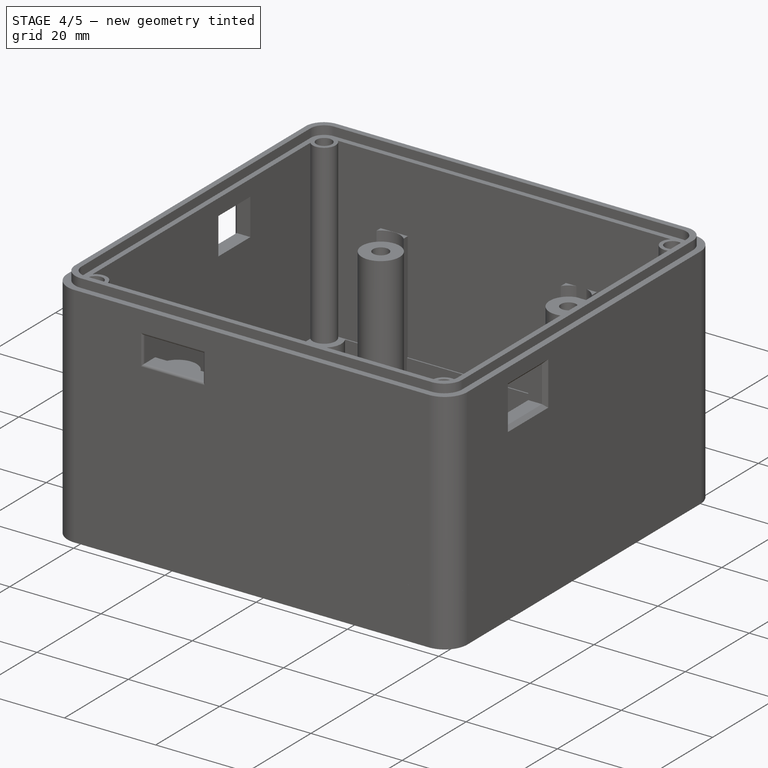
[diagram: stage 4 of 5 — iso view after this stage's code; geometry added in this stage tinted green]
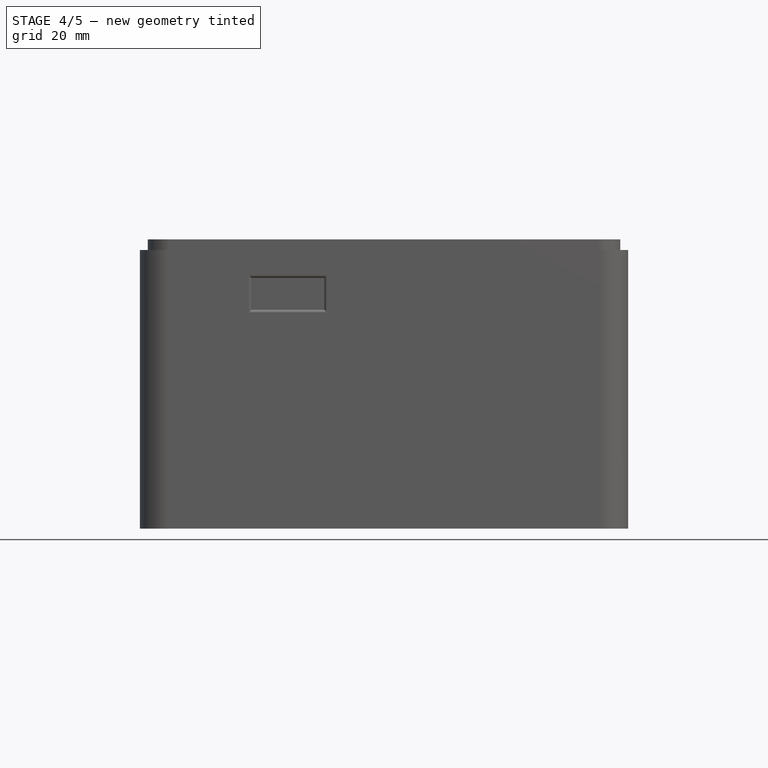
[diagram: stage 4 of 5 — front view after this stage's code; geometry added in this stage tinted green]
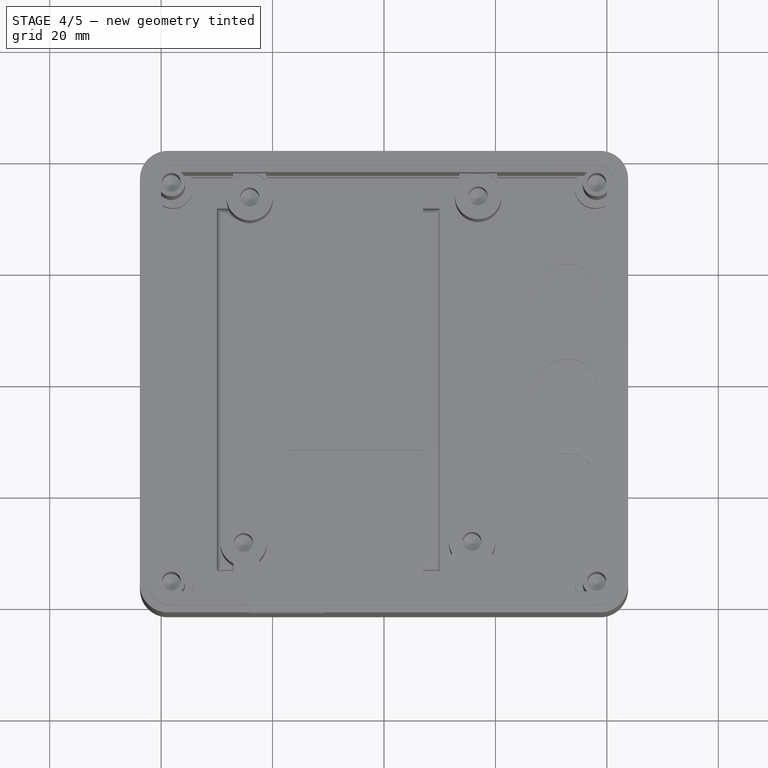
[diagram: stage 4 of 5 — top view after this stage's code; geometry added in this stage tinted green]
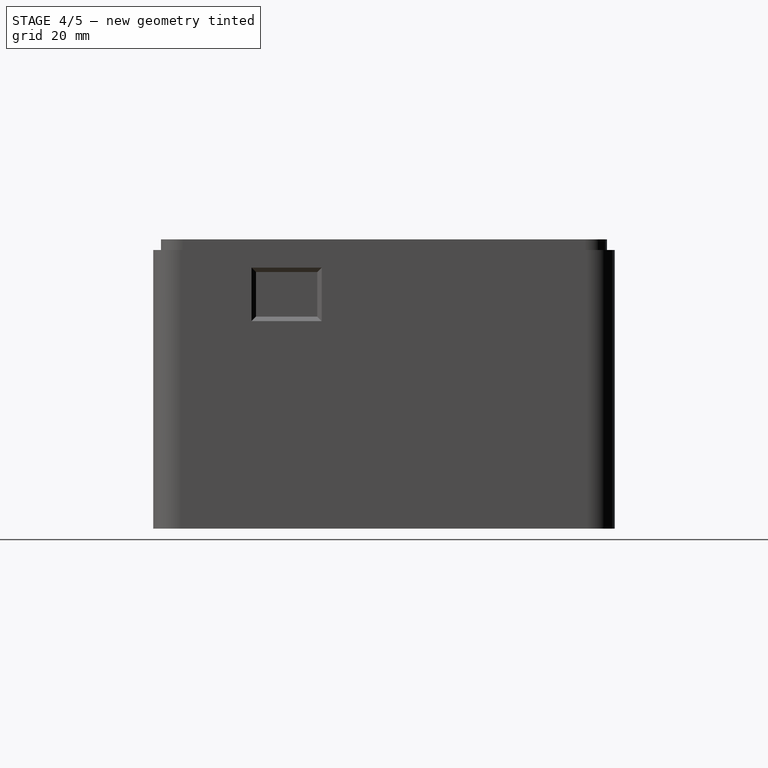
[diagram: stage 4 of 5 — right view after this stage's code; geometry added in this stage tinted green]
FEATURE [Sketcher::SketchObject] Sketch015
  ExternalGeometry = -> [Hole]
  FullyConstrained = true
  MapMode = 5
  Placement = pos=(0,0,0) rot=(1,0,0;3.14159rad)
  Support = -> [Hole]
  sketch-geometry (4):
    g0: Circle CenterX=-37.9 CenterY=35.52 CenterZ=0 NormalX=0 NormalY=0 NormalZ=1 AngleXU=0 Radius=3
    g1: Circle CenterX=37.9 CenterY=-35.52 CenterZ=0 NormalX=0 NormalY=0 NormalZ=1 AngleXU=0 Radius=3
    g2: Circle CenterX=37.9 CenterY=35.52 CenterZ=0 NormalX=0 NormalY=0 NormalZ=1 AngleXU=0 Radius=3
    g3: Circle CenterX=-37.9 CenterY=-35.52 CenterZ=0 NormalX=0 NormalY=0 NormalZ=1 AngleXU=0 Radius=3
  constraints (8):
    c: Coincident(g1,g-5)
    c: Diameter(g0) = 6
    c: Equal(g1,g2)
    c: Coincident(g0,g-7)
    c: Coincident(g2,g-6)
    c: Coincident(g3,g-3)
    c: Equal(g1,g0)
    c: Equal(g3,g2)
FEATURE [PartDesign::Pocket] Pocket006
  BaseFeature = -> Hole
  Direction = (0,0,1)
  Length = 6.5
  Length2 = 5
  Profile = -> Sketch015
  ReferenceAxis = -> Sketch015 [N_Axis]
  Type = 0
FEATURE [PartDesign::Fillet] Fillet002
  Base = -> Pocket006 [Edge12,Edge14,Edge9,Edge3,Edge6,Edge11,Face4,Edge13,Edge15]
  BaseFeature = -> Pocket006
  Radius = 0.8
  SupportTransform = false
  UseAllEdges = false
FEATURE [Sketcher::SketchObject] Sketch016
  ExternalGeometry = -> [Fillet002]
  FullyConstrained = true
  MapMode = 5
  Placement = pos=(0,0,0) rot=(1,0,0;3.14159rad)
  Support = -> [Fillet002]
  sketch-geometry (6):
    g0: LineSegment StartX=-17.1 StartY=41.42 StartZ=0 EndX=-17.1 EndY=27.12 EndZ=0
    g1: LineSegment StartX=-43.8 StartY=27.12 StartZ=0 EndX=-17.1 EndY=27.12 EndZ=0
    g2: LineSegment StartX=-17.1 StartY=27.12 StartZ=0 EndX=8.9 EndY=27.12 EndZ=0
    g3: LineSegment StartX=8.9 StartY=27.12 StartZ=0 EndX=8.9 EndY=11.48 EndZ=0
    g4: LineSegment StartX=8.9 StartY=11.48 StartZ=0 EndX=-17.1 EndY=11.48 EndZ=0
    g5: LineSegment StartX=-17.1 StartY=11.48 StartZ=0 EndX=-17.1 EndY=27.12 EndZ=0
  constraints (18):
    c: PointOnObject(g0,g-3)
    c: Vertical(g0)
    c: DistanceY(g0,g0) = 14.3
    c: PointOnObject(g1,g-4)
    c: Horizontal(g1)
    c: DistanceX(g1,g1) = 26.7
    c: Coincident(g2,g3)
    c: Coincident(g3,g4)
    c: Coincident(g4,g5)
    c: Coincident(g5,g2)
    c: Horizontal(g2)
    c: Horizontal(g4)
    c: Vertical(g3)
    c: Vertical(g5)
    c: Coincident(g2,g1)
    c: Coincident(g0,g2)
    c: DistanceX(g2,g2) = 26
    c: DistanceY(g3,g3) = 15.64
FEATURE [PartDesign::Pocket] Pocket007
  BaseFeature = -> Fillet002
  Direction = (0,0,1)
  Length = 5
  Length2 = 5
  Profile = -> Sketch016
  ReferenceAxis = -> Sketch016 [N_Axis]
  Type = 0
FEATURE [PartDesign::Fillet] Fillet003
  Base = -> Pocket007 [Edge38,Edge41,Edge40,Edge39]
  BaseFeature = -> Pocket007
  Radius = 1
  SupportTransform = false
  UseAllEdges = false
FEATURE [Sketcher::SketchObject] Sketch017
  ExternalGeometry = -> [Fillet003]
  FullyConstrained = true
  MapMode = 5
  Placement = pos=(0,0,0) rot=(1,0,0;3.14159rad)
  Support = -> [Fillet003]
  sketch-geometry (6):
    g0: Circle CenterX=32.9 CenterY=17.62 CenterZ=0 NormalX=0 NormalY=0 NormalZ=1 AngleXU=0 Radius=5.5
    g1: LineSegment StartX=32.9 StartY=17.62 StartZ=0 EndX=32.9 EndY=0.62 EndZ=0
    g2: LineSegment StartX=32.9 StartY=0.62 StartZ=0 EndX=32.9 EndY=-16.38 EndZ=0
    g3: Circle CenterX=32.9 CenterY=0.62 CenterZ=0 NormalX=0 NormalY=0 NormalZ=1 AngleXU=0 Radius=5.5
    g4: Circle CenterX=32.9 CenterY=-16.38 CenterZ=0 NormalX=0 NormalY=0 NormalZ=1 AngleXU=0 Radius=5.5
    g5: LineSegment StartX=32.9 StartY=17.62 StartZ=0 EndX=32.9 EndY=40.62 EndZ=0
  constraints (16):
    c: Diameter(g0) = 11
    c: DistanceX(g-3,g0) = 23
    c: Coincident(g1,g0)
    c: Vertical(g1)
    c: Coincident(g2,g1)
    c: Vertical(g2)
    c: Coincident(g3,g1)
    c: Coincident(g4,g2)
    c: Coincident(g5,g0)
    c: PointOnObject(g5,g-5)
    c: Vertical(g5)
    c: Diameter(g3) = 11
    c: Diameter(g4) = 11
    c: DistanceY(g5,g5) = 23
    c: DistanceY(g1,g1) = 17
    c: DistanceY(g2,g2) = 17
FEATURE [PartDesign::Pocket] Pocket008
  BaseFeature = -> Fillet003
  Direction = (0,0,1)
  Length = 5
  Length2 = 5
  Profile = -> Sketch017
  ReferenceAxis = -> Sketch017 [N_Axis]
  Type = 0
FEATURE [PartDesign::Chamfer] Chamfer002
  Angle = 45
  Base = -> Pocket008 [Edge15,Edge16,Edge18]
  BaseFeature = -> Pocket008
  ChamferType = 0
  FlipDirection = false
  Size = 0.8
  Size2 = 1
  SupportTransform = false
  UseAllEdges = false
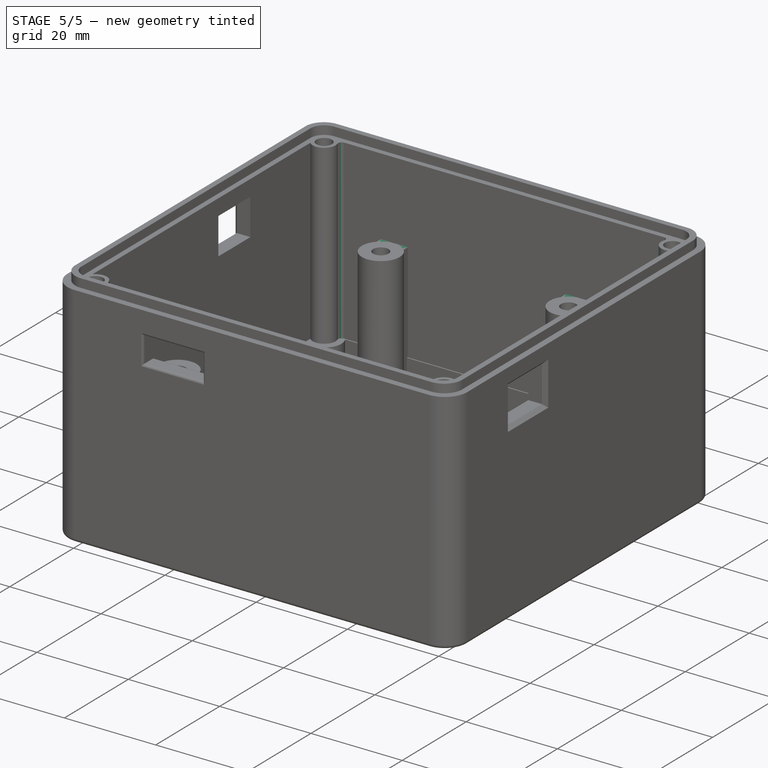
[diagram: stage 5 of 5 — iso view after this stage's code; geometry added in this stage tinted green]
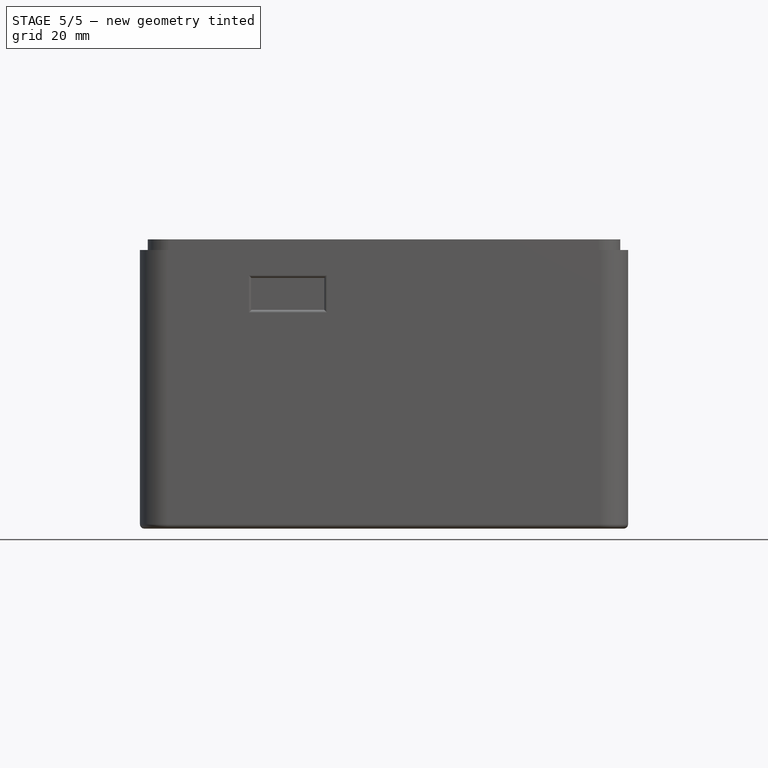
[diagram: stage 5 of 5 — front view after this stage's code; geometry added in this stage tinted green]
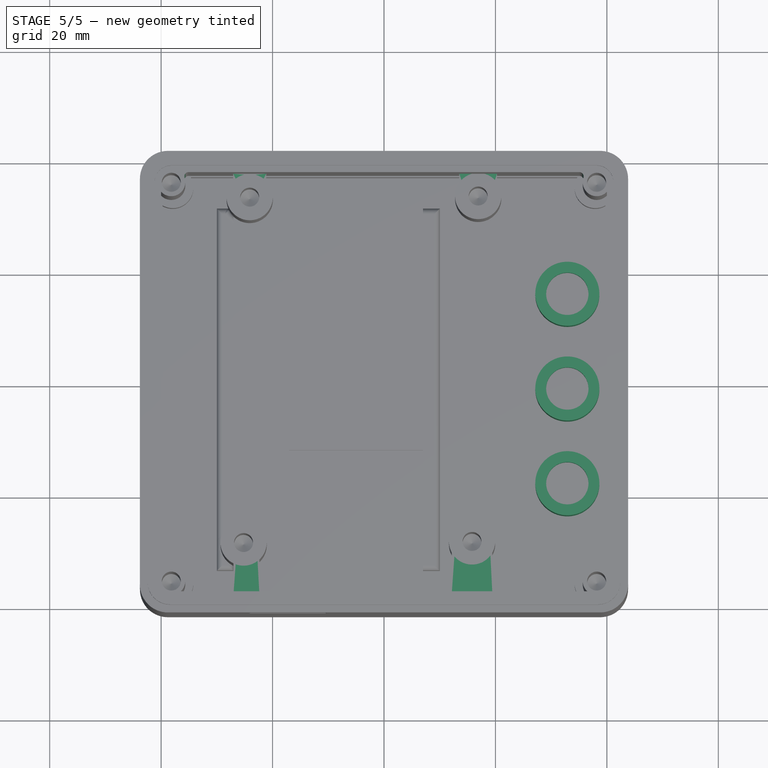
[diagram: stage 5 of 5 — top view after this stage's code; geometry added in this stage tinted green]
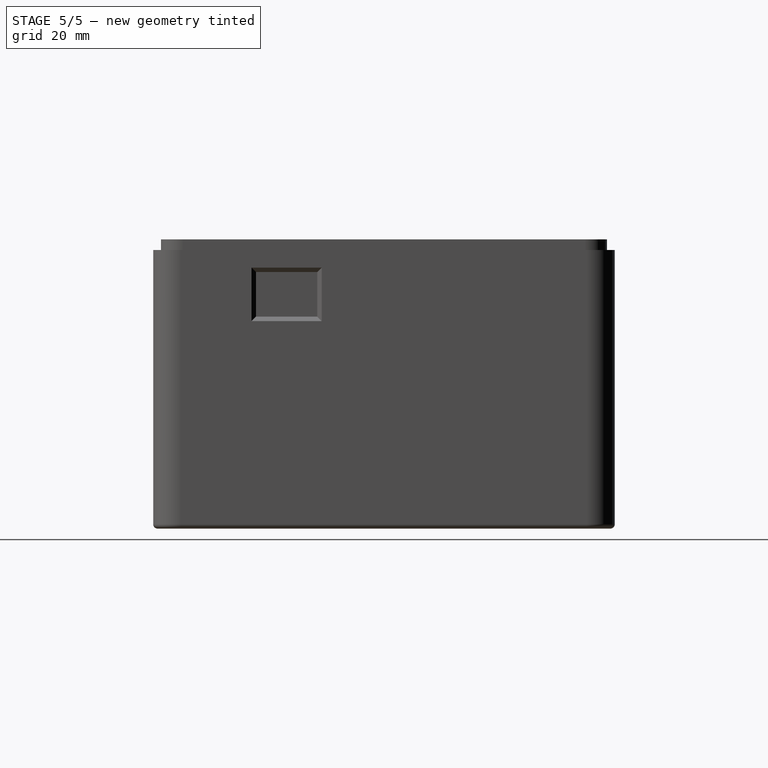
[diagram: stage 5 of 5 — right view after this stage's code; geometry added in this stage tinted green]
FEATURE [Sketcher::SketchObject] Sketch022
  ExternalGeometry = -> [Chamfer002]
  FullyConstrained = true
  MapMode = 5
  Placement = pos=(0,0,0) rot=(1,0,0;3.14159rad)
  Support = -> [Chamfer002]
  sketch-geometry (7):
    g0: LineSegment StartX=-42 StartY=30.72 StartZ=0 EndX=-42 EndY=-30.72 EndZ=0
    g1: LineSegment StartX=-42 StartY=-30.72 StartZ=0 EndX=42 EndY=-30.72 EndZ=0
    g2: LineSegment StartX=-42 StartY=30.72 StartZ=0 EndX=42 EndY=30.72 EndZ=0
    g3: LineSegment StartX=42 StartY=-30.72 StartZ=0 EndX=42 EndY=30.72 EndZ=0
    g4: LineSegment StartX=-37.9 StartY=35.52 StartZ=0 EndX=-37.9 EndY=31.72 EndZ=0
    g5: LineSegment StartX=37.9 StartY=35.52 StartZ=0 EndX=37.9 EndY=31.72 EndZ=0
    g6: LineSegment StartX=37.9 StartY=-35.52 StartZ=0 EndX=37.9 EndY=-31.72 EndZ=0
  constraints (21):
    c: Vertical(g0)
    c: Horizontal(g1)
    c: Coincident(g1,g0)
    c: Coincident(g2,g0)
    c: Coincident(g3,g1)
    c: Coincident(g3,g2)
    c: DistanceX(g-8,g0) = 1
    c: Coincident(g4,g-3)
    c: PointOnObject(g4,g-3)
    c: Vertical(g4)
    c: DistanceY(g0,g4) = 1
    c: DistanceX(g2,g-7) = 1
    c: Vertical(g3)
    c: Coincident(g5,g-4)
    c: PointOnObject(g5,g-4)
    c: Vertical(g5)
    c: DistanceY(g2,g5) = 1
    c: Coincident(g6,g-5)
    c: PointOnObject(g6,g-5)
    c: Vertical(g6)
    c: DistanceY(g6,g1) = 1
FEATURE [TechDraw::DrawSVGTemplate] Template
  EditableTexts = Designed_by_Name=Designed by Name; Drawing_number=Drawing number; FC-Date=Date; FC-SC=Scale; FC-SH=Sheet; FC-Title=Title; Subtitle=Subtitle; Weight=Weight
  Height = 210
  Orientation = 1
  Width = 297
FEATURE [TechDraw::DrawViewPart] View
  CoarseView = false
  Direction = (0,0,-1)
  Focus = 100
  HardHidden = false
  IsoCount = 0
  IsoHidden = false
  IsoVisible = false
  LockPosition = false
  Perspective = false
  Rotation = 0
  ScaleType = 0
  SeamHidden = false
  SeamVisible = true
  SmoothHidden = false
  SmoothVisible = true
  X = 93.2784
  XDirection = (1,0,0)
  Y = 141.239
FEATURE [TechDraw::DrawViewDimension] Dimension001
  AngleOverride = false
  Arbitrary = false
  ArbitraryTolerances = false
  EqualTolerance = true
  ExtensionAngle = 0
  FormatSpec = %.2w
  FormatSpecOverTolerance = %+.2w
  FormatSpecUnderTolerance = %+.2w
  Inverted = false
  LineAngle = 0
  LockPosition = false
  MeasureType = 1
  OverTolerance = 0
  References2D = -> [View]
  Rotation = 0
  ScaleType = 0
  TheoreticalExact = false
  Type = 2
  UnderTolerance = 0
  X = 6.59321
  Y = -6.10118
FEATURE [TechDraw::DrawViewDimension] Dimension002
  AngleOverride = false
  Arbitrary = false
  ArbitraryTolerances = false
  EqualTolerance = true
  ExtensionAngle = 0
  FormatSpec = %.2w
  FormatSpecOverTolerance = %+.2w
  FormatSpecUnderTolerance = %+.2w
  Inverted = false
  LineAngle = 0
  LockPosition = false
  MeasureType = 1
  OverTolerance = 0
  References2D = -> [View]
  Rotation = 0
  ScaleType = 0
  TheoreticalExact = false
  Type = 1
  UnderTolerance = 0
  X = 17.6962
  Y = 6.37472
FEATURE [TechDraw::DrawViewDimension] Dimension003
  AngleOverride = false
  Arbitrary = false
  ArbitraryTolerances = false
  EqualTolerance = true
  ExtensionAngle = 0
  FormatSpec = %.2w
  FormatSpecOverTolerance = %+.2w
  FormatSpecUnderTolerance = %+.2w
  Inverted = false
  LineAngle = 0
  LockPosition = false
  MeasureType = 1
  OverTolerance = 0
  References2D = -> [View]
  Rotation = 0
  ScaleType = 0
  TheoreticalExact = false
  Type = 1
  UnderTolerance = 0
  X = -50.6487
  Y = -1.75604
FEATURE [TechDraw::DrawViewDimension] Dimension004
  AngleOverride = false
  Arbitrary = false
  ArbitraryTolerances = false
  EqualTolerance = true
  ExtensionAngle = 0
  FormatSpec = %.2w
  FormatSpecOverTolerance = %+.2w
  FormatSpecUnderTolerance = %+.2w
  Inverted = false
  LineAngle = 0
  LockPosition = false
  MeasureType = 1
  OverTolerance = 0
  References2D = -> [View]
  Rotation = 0
  ScaleType = 0
  TheoreticalExact = false
  Type = 2
  UnderTolerance = 0
  X = 54.7802
  Y = 38.8568
FEATURE [TechDraw::DrawViewDimension] Dimension005
  AngleOverride = false
  Arbitrary = false
  ArbitraryTolerances = false
  EqualTolerance = true
  ExtensionAngle = 0
  FormatSpec = %.2w
  FormatSpecOverTolerance = %+.2w
  FormatSpecUnderTolerance = %+.2w
  Inverted = false
  LineAngle = 0
  LockPosition = false
  MeasureType = 1
  OverTolerance = 0
  References2D = -> [View]
  Rotation = 0
  ScaleType = 0
  TheoreticalExact = false
  Type = 2
  UnderTolerance = 0
  X = 66.1749
  Y = 25.942
FEATURE [TechDraw::DrawViewDimension] Dimension006
  AngleOverride = false
  Arbitrary = false
  ArbitraryTolerances = false
  EqualTolerance = true
  ExtensionAngle = 0
  FormatSpec = %.2w
  FormatSpecOverTolerance = %+.2w
  FormatSpecUnderTolerance = %+.2w
  Inverted = false
  LineAngle = 0
  LockPosition = false
  MeasureType = 1
  OverTolerance = 0
  References2D = -> [View]
  Rotation = 0
  ScaleType = 0
  TheoreticalExact = false
  Type = 2
  UnderTolerance = 0
  X = 76.9289
  Y = 22.2393
FEATURE [TechDraw::DrawViewDimension] Dimension007
  AngleOverride = false
  Arbitrary = false
  ArbitraryTolerances = false
  EqualTolerance = true
  ExtensionAngle = 0
  FormatSpec = %.2w
  FormatSpecOverTolerance = %+.2w
  FormatSpecUnderTolerance = %+.2w
  Inverted = false
  LineAngle = 0
  LockPosition = false
  MeasureType = 1
  OverTolerance = 0
  References2D = -> [View]
  Rotation = 0
  ScaleType = 0
  TheoreticalExact = false
  Type = 2
  UnderTolerance = 0
  X = 107.861
  Y = 4.45131
FEATURE [TechDraw::DrawViewDimension] Dimension008
  AngleOverride = false
  Arbitrary = false
  ArbitraryTolerances = false
  EqualTolerance = true
  ExtensionAngle = 0
  FormatSpec = %.2w
  FormatSpecOverTolerance = %+.2w
  FormatSpecUnderTolerance = %+.2w
  Inverted = false
  LineAngle = 0
  LockPosition = false
  MeasureType = 1
  OverTolerance = 0
  References2D = -> [View]
  Rotation = 0
  ScaleType = 0
  TheoreticalExact = false
  Type = 2
  UnderTolerance = 0
  X = 86.812
  Y = 16.3337
FEATURE [TechDraw::DrawViewDimension] Dimension009
  AngleOverride = false
  Arbitrary = false
  ArbitraryTolerances = false
  EqualTolerance = true
  ExtensionAngle = 0
  FormatSpec = %.2w
  FormatSpecOverTolerance = %+.2w
  FormatSpecUnderTolerance = %+.2w
  Inverted = false
  LineAngle = 0
  LockPosition = false
  MeasureType = 1
  OverTolerance = 0
  References2D = -> [View]
  Rotation = 0
  ScaleType = 0
  TheoreticalExact = false
  Type = 2
  UnderTolerance = 0
  X = 98.1297
  Y = 7.63856
FEATURE [TechDraw::DrawViewDimension] Dimension010
  AngleOverride = false
  Arbitrary = false
  ArbitraryTolerances = false
  EqualTolerance = true
  ExtensionAngle = 0
  FormatSpec = %.2w
  FormatSpecOverTolerance = %+.2w
  FormatSpecUnderTolerance = %+.2w
  Inverted = false
  LineAngle = 0
  LockPosition = false
  MeasureType = 1
  OverTolerance = 0
  References2D = -> [View]
  Rotation = 0
  ScaleType = 0
  TheoreticalExact = false
  Type = 1
  UnderTolerance = 0
  X = -1.96436
  Y = -78.5659
FEATURE [TechDraw::DrawViewDimension] Dimension011
  AngleOverride = false
  Arbitrary = false
  ArbitraryTolerances = false
  EqualTolerance = true
  ExtensionAngle = 0
  FormatSpec = %.2w
  FormatSpecOverTolerance = %+.2w
  FormatSpecUnderTolerance = %+.2w
  Inverted = false
  LineAngle = 0
  LockPosition = false
  MeasureType = 1
  OverTolerance = 0
  References2D = -> [View]
  Rotation = 0
  ScaleType = 0
  TheoreticalExact = false
  Type = 1
  UnderTolerance = 0
  X = -29.7935
  Y = -50.158
FEATURE [TechDraw::DrawViewDimension] Dimension012
  AngleOverride = false
  Arbitrary = false
  ArbitraryTolerances = false
  EqualTolerance = true
  ExtensionAngle = 0
  FormatSpec = %.2w
  FormatSpecOverTolerance = %+.2w
  FormatSpecUnderTolerance = %+.2w
  Inverted = false
  LineAngle = 0
  LockPosition = false
  MeasureType = 1
  OverTolerance = 0
  References2D = -> [View]
  Rotation = 0
  ScaleType = 0
  TheoreticalExact = false
  Type = 1
  UnderTolerance = 0
  X = -2.11319
  Y = -69.5357
FEATURE [TechDraw::DrawViewDimension] Dimension013
  AngleOverride = false
  Arbitrary = false
  ArbitraryTolerances = false
  EqualTolerance = true
  ExtensionAngle = 0
  FormatSpec = %.2w
  FormatSpecOverTolerance = %+.2w
  FormatSpecUnderTolerance = %+.2w
  Inverted = false
  LineAngle = 0
  LockPosition = false
  MeasureType = 1
  OverTolerance = 0
  References2D = -> [View]
  Rotation = 0
  ScaleType = 0
  TheoreticalExact = false
  Type = 1
  UnderTolerance = 0
  X = -16.05
  Y = -60.3809
FEATURE [TechDraw::DrawViewDimension] Dimension014
  AngleOverride = false
  Arbitrary = false
  ArbitraryTolerances = false
  EqualTolerance = true
  ExtensionAngle = 0
  FormatSpec = %.2w
  FormatSpecOverTolerance = %+.2w
  FormatSpecUnderTolerance = %+.2w
  Inverted = false
  LineAngle = 0
  LockPosition = false
  MeasureType = 1
  OverTolerance = 0
  References2D = -> [View]
  Rotation = 0
  ScaleType = 0
  TheoreticalExact = false
  Type = 1
  UnderTolerance = 0
  X = 20.5928
  Y = -11.1132
FEATURE [TechDraw::DrawViewDimension] Dimension
  AngleOverride = false
  Arbitrary = false
  ArbitraryTolerances = false
  EqualTolerance = true
  ExtensionAngle = 0
  FormatSpec = %.2w
  FormatSpecOverTolerance = %+.2w
  FormatSpecUnderTolerance = %+.2w
  Inverted = false
  LineAngle = 0
  LockPosition = false
  MeasureType = 1
  OverTolerance = 0
  References2D = -> [View]
  Rotation = 0
  ScaleType = 0
  TheoreticalExact = false
  Type = 2
  UnderTolerance = 0
  X = 16.423
  Y = 45.076
FEATURE [TechDraw::DrawViewDimension] Dimension015
  AngleOverride = false
  Arbitrary = false
  ArbitraryTolerances = false
  EqualTolerance = true
  ExtensionAngle = 0
  FormatSpec = %.2w
  FormatSpecOverTolerance = %+.2w
  FormatSpecUnderTolerance = %+.2w
  Inverted = false
  LineAngle = 0
  LockPosition = false
  MeasureType = 1
  OverTolerance = 0
  References2D = -> [View]
  Rotation = 0
  ScaleType = 0
  TheoreticalExact = false
  Type = 2
  UnderTolerance = 0
  X = 60.3812
  Y = 10.5825
FEATURE [TechDraw::DrawViewDimension] Dimension016
  AngleOverride = false
  Arbitrary = false
  ArbitraryTolerances = false
  EqualTolerance = true
  ExtensionAngle = 0
  FormatSpec = %.2w
  FormatSpecOverTolerance = %+.2w
  FormatSpecUnderTolerance = %+.2w
  Inverted = false
  LineAngle = 0
  LockPosition = false
  MeasureType = 1
  OverTolerance = 0
  References2D = -> [View]
  Rotation = 0
  ScaleType = 0
  TheoreticalExact = false
  Type = 2
  UnderTolerance = 0
  X = 58.8772
  Y = -8.43177
FEATURE [TechDraw::DrawViewDimension] Dimension017
  AngleOverride = false
  Arbitrary = false
  ArbitraryTolerances = false
  EqualTolerance = true
  ExtensionAngle = 0
  FormatSpec = %.2w
  FormatSpecOverTolerance = %+.2w
  FormatSpecUnderTolerance = %+.2w
  Inverted = false
  LineAngle = 0
  LockPosition = false
  MeasureType = 1
  OverTolerance = 0
  References2D = -> [View]
  Rotation = 0
  ScaleType = 0
  TheoreticalExact = false
  Type = 1
  UnderTolerance = 0
  X = 52.7983
  Y = 2.86229
FEATURE [TechDraw::DrawPage] Page
  KeepUpdated = true
  NextBalloonIndex = 1
  ProjectionType = 0
  Template = -> Template
  Views = -> [View,Dimension001,Dimension002,Dimension003,Dimension004,Dimension005,Dimension006,Dimension007,Dimension008,Dimension009,Dimension010,Dimension011,Dimension012,Dimension013,Dimension014,Dimension,Dimension015,Dimension016,Dimension017]
FEATURE [Sketcher::SketchObject] Sketch027
  ExternalGeometry = -> [Chamfer002]
  FullyConstrained = true
  MapMode = 5
  Placement = pos=(0,0,3.46) rot=(0,0,1;0rad)
  Support = -> [Chamfer002]
  sketch-geometry (3):
    g0: Circle CenterX=32.9 CenterY=-17.62 CenterZ=0 NormalX=0 NormalY=0 NormalZ=1 AngleXU=0 Radius=5.75
    g1: Circle CenterX=32.9 CenterY=-0.62 CenterZ=0 NormalX=0 NormalY=0 NormalZ=1 AngleXU=0 Radius=5.75
    g2: Circle CenterX=32.9 CenterY=16.38 CenterZ=0 NormalX=0 NormalY=0 NormalZ=1 AngleXU=0 Radius=5.75
  constraints (6):
    c: Coincident(g0,g-5)
    c: Coincident(g2,g-4)
    c: Coincident(g1,g-3)
    c: Diameter(g0) = 11.5
    c: Diameter(g1) = 11.5
    c: Diameter(g2) = 11.5
FEATURE [PartDesign::Pad] Pad012
  BaseFeature = -> Chamfer002
  Direction = (0,0,1)
  Length = 12
  Length2 = 10
  Profile = -> Sketch027
  ReferenceAxis = -> Sketch027 [N_Axis]
  Type = 0
FEATURE [Sketcher::SketchObject] Sketch028
  ExternalGeometry = -> [Pad012]
  FullyConstrained = true
  MapMode = 5
  Placement = pos=(0,0,3.46) rot=(1,0,0;3.14159rad)
  Support = -> [Pad012]
  sketch-geometry (1):
    g0: Circle CenterX=32.9 CenterY=17.62 CenterZ=0 NormalX=0 NormalY=0 NormalZ=1 AngleXU=0 Radius=3.8
  constraints (2):
    c: Coincident(g0,g-3)
    c: Diameter(g0) = 7.6
FEATURE [Sketcher::SketchObject] Sketch029
  ExternalGeometry = -> [Pad012]
  FullyConstrained = true
  MapMode = 5
  Placement = pos=(0,0,3.46) rot=(1,0,0;3.14159rad)
  Support = -> [Pad012]
  sketch-geometry (2):
    g0: Circle CenterX=32.9 CenterY=0.62 CenterZ=0 NormalX=0 NormalY=0 NormalZ=1 AngleXU=0 Radius=3.8
    g1: Circle CenterX=32.9 CenterY=-16.38 CenterZ=0 NormalX=0 NormalY=0 NormalZ=1 AngleXU=0 Radius=3.8
  constraints (4):
    c: Coincident(g0,g-3)
    c: Diameter(g0) = 7.6
    c: Coincident(g1,g-4)
    c: Diameter(g1) = 7.6
FEATURE [PartDesign::Hole] Hole004
  BaseFeature = -> Pad012
  CustomThreadClearance = 0
  Depth = 25
  DepthType = 0
  Diameter = 7.6
  DrillForDepth = false
  DrillPoint = 1
  DrillPointAngle = 118
  HoleCutCountersinkAngle = 90
  HoleCutCustomValues = false
  HoleCutDepth = 0
  HoleCutDiameter = 6.1
  HoleCutType = 0
  ModelThread = false
  Profile = -> Sketch029
  Tapered = false
  TaperedAngle = 90
  ThreadClass = 0
  ThreadDepth = 25
  ThreadDepthType = 0
  ThreadDirection = 0
  ThreadFit = 0
  ThreadSize = 0
  ThreadType = 0
  Threaded = false
  UseCustomThreadClearance = false
FEATURE [PartDesign::Hole] Hole005
  BaseFeature = -> Hole004
  CustomThreadClearance = 0
  Depth = 25
  DepthType = 0
  Diameter = 7.6
  DrillForDepth = false
  DrillPoint = 1
  DrillPointAngle = 118
  HoleCutCountersinkAngle = 90
  HoleCutCustomValues = false
  HoleCutDepth = 0
  HoleCutDiameter = 7.7
  HoleCutType = 0
  ModelThread = false
  Profile = -> Sketch028
  Tapered = false
  TaperedAngle = 90
  ThreadClass = 0
  ThreadDepth = 25
  ThreadDepthType = 0
  ThreadDirection = 0
  ThreadFit = 0
  ThreadSize = 0
  ThreadType = 0
  Threaded = false
  UseCustomThreadClearance = false
FEATURE [PartDesign::Pocket] Pocket010
  BaseFeature = -> Hole005
  Direction = (0,0,1)
  Length = 7.7
  Length2 = 5
  Profile = -> Hole005 [Face40,Face47,Face48]
  Type = 0
FEATURE [Sketcher::SketchObject] Sketch021
  ExternalGeometry = -> [Hole006]
  FullyConstrained = true
  MapMode = 5
  Placement = pos=(0,0,2.2) rot=(0,0,1;0rad)
  sketch-geometry (8):
    g0: LineSegment StartX=10 StartY=0 StartZ=0 EndX=40 EndY=0 EndZ=0
    g1: LineSegment StartX=-40 StartY=0 StartZ=0 EndX=-30 EndY=0 EndZ=0
    g2: GeomPoint X=-35 Y=0 Z=0
    g3: GeomPoint X=25 Y=0 Z=0
    g4: Circle CenterX=-35 CenterY=0 CenterZ=0 NormalX=0 NormalY=0 NormalZ=1 AngleXU=0 Radius=1
    g5: Circle CenterX=25 CenterY=0 CenterZ=0 NormalX=0 NormalY=0 NormalZ=1 AngleXU=0 Radius=1
    g6: GeomPoint X=-30 Y=0 Z=0
    g7: GeomPoint X=-40 Y=0 Z=0
  constraints (15):
    c: Symmetric(g0,g0,g3)
    c: Symmetric(g1,g1,g2)
    c: Tangent(g0,g-1) = -1.5708
    c: Coincident(g4,g2)
    c: Coincident(g5,g3)
    c: Diameter(g4) = 2
    c: Diameter(g5) = 2
    c: PointOnObject(g0,g-5)
    c: PointOnObject(g0,g-4)
    c: PointOnObject(g6,g-1)
    c: PointOnObject(g6,g-8)
    c: Coincident(g1,g6)
    c: PointOnObject(g7,g-1)
    c: PointOnObject(g7,g-7)
    c: Coincident(g1,g7)
FEATURE [PartDesign::Hole] Hole003
  BaseFeature = -> Hole006
  CustomThreadClearance = 0
  Depth = 25
  DepthType = 0
  Diameter = 5.5
  DrillForDepth = false
  DrillPoint = 1
  DrillPointAngle = 118
  HoleCutCountersinkAngle = 90
  HoleCutCustomValues = false
  HoleCutDepth = 0
  HoleCutDiameter = 6.1
  HoleCutType = 0
  ModelThread = false
  Profile = -> Sketch021
  Tapered = false
  TaperedAngle = 90
  ThreadClass = 0
  ThreadDepth = 25
  ThreadDepthType = 0
  ThreadDirection = 0
  ThreadFit = 0
  ThreadSize = 13
  ThreadType = 1
  Threaded = false
  UseCustomThreadClearance = false
FEATURE [PartDesign::Fillet] Fillet005
  Base = -> Hole003 [Edge192,Edge190,Edge188,Edge189,Edge191,Edge193,Edge195,Edge194]
  BaseFeature = -> Hole003
  Radius = 1
  SupportTransform = false
  UseAllEdges = false
FEATURE [PartDesign::Fillet] Fillet006
  Base = -> Fillet005 [Edge138,Edge209,Edge180,Edge212,Edge169,Edge129,Edge174,Edge186]
  BaseFeature = -> Fillet005
  Radius = 0.8
  SupportTransform = false
  UseAllEdges = false
FEATURE [PartDesign::Body] Body001  label="CASE"
  Group = -> [Sketch001,Pad,Sketch,Pad001,Sketch002,Pocket,Sketch004,Pad002,Sketch007,Pad003,Sketch008,Pocket001,Fillet,Sketch009,Pocket002,Chamfer,Sketch010,Pocket003,Chamfer001,Sketch018,Pad005,Hole001,Fillet004,Sketch019,Pad006,Hole006,Sketch031,Sketch021,Hole003,Fillet005,Fillet006]
  Origin = -> Origin001
  Tip = -> Fillet006
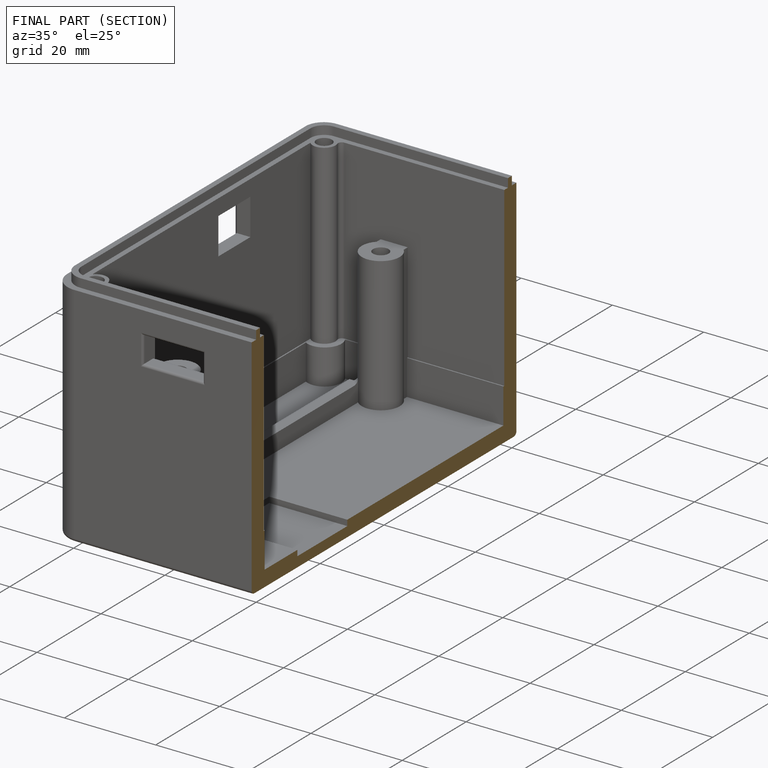
[diagram: finished part — half-section view (interior)]
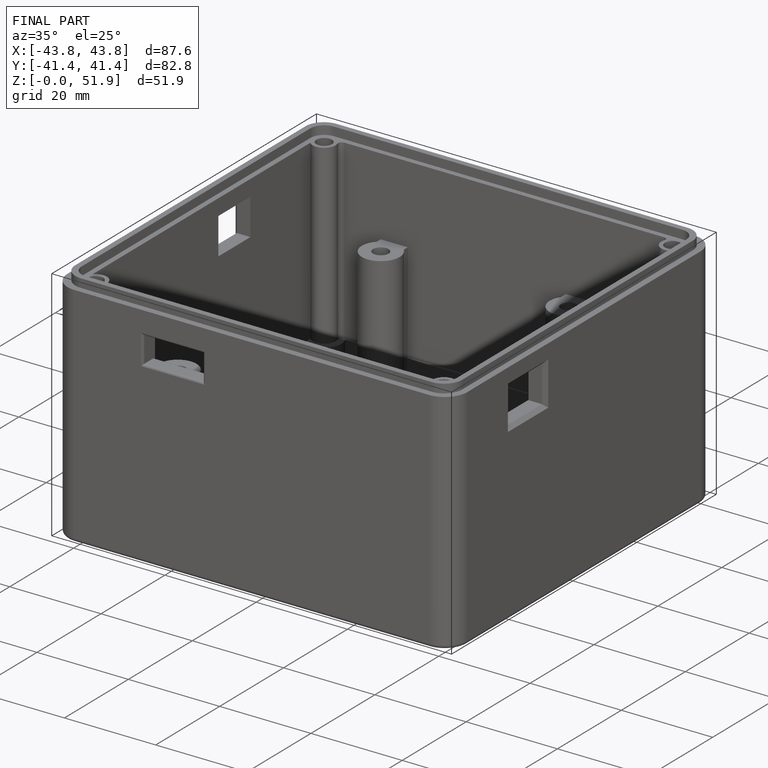
[diagram: finished part — iso view with bounding-box wireframe]
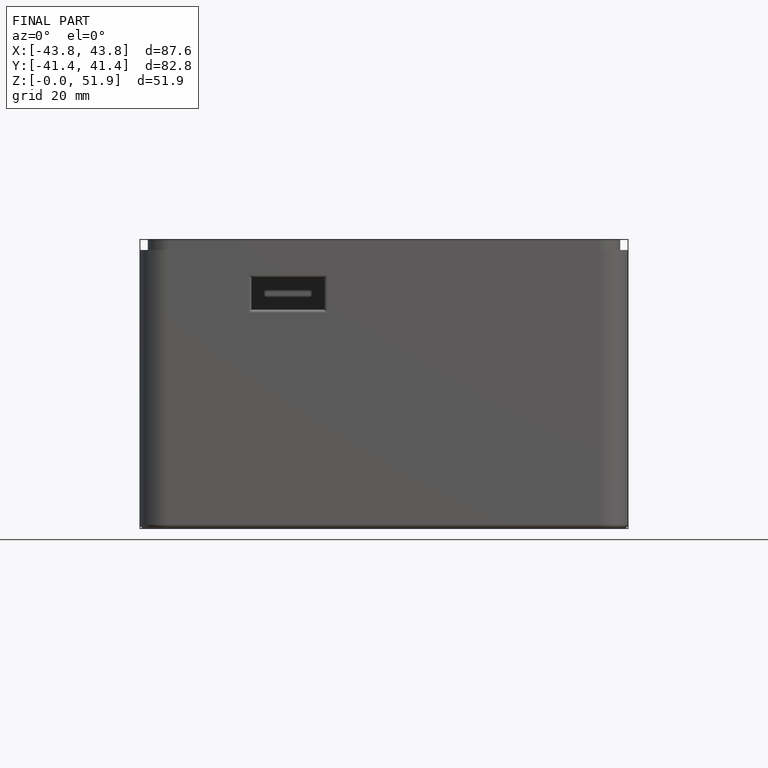
[diagram: finished part — front view with bounding-box wireframe]
